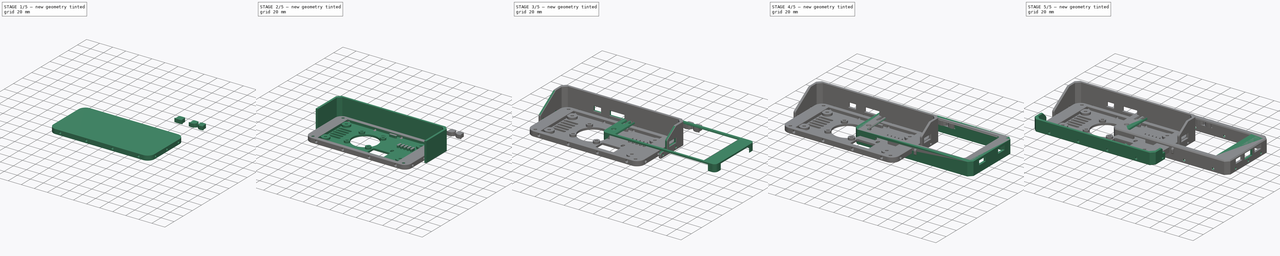
[diagram: build sequence overview — one tinted view per stage of 5, left to right]
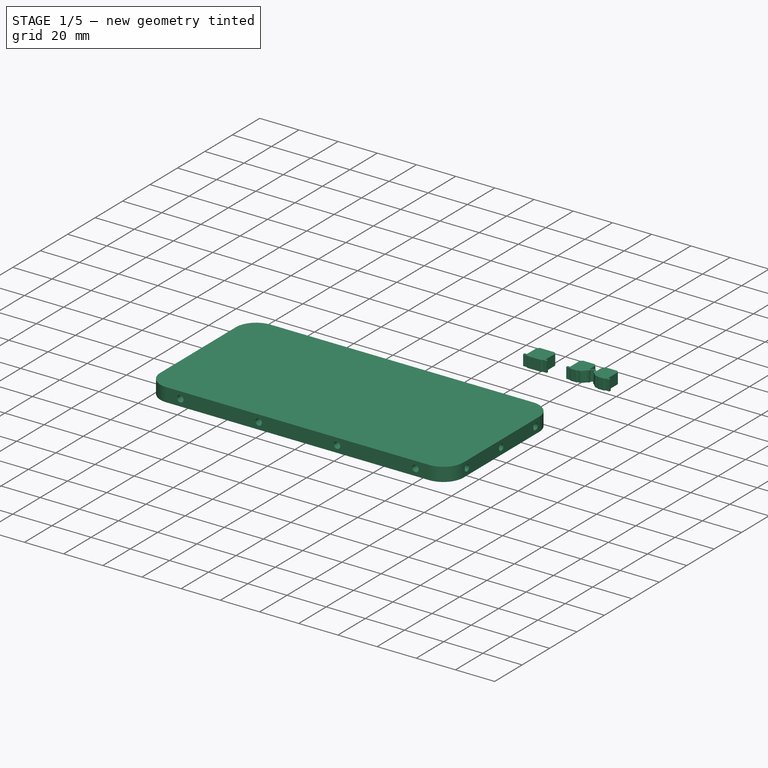
[diagram: stage 1 of 5 — iso view after this stage's code; geometry added in this stage tinted green]
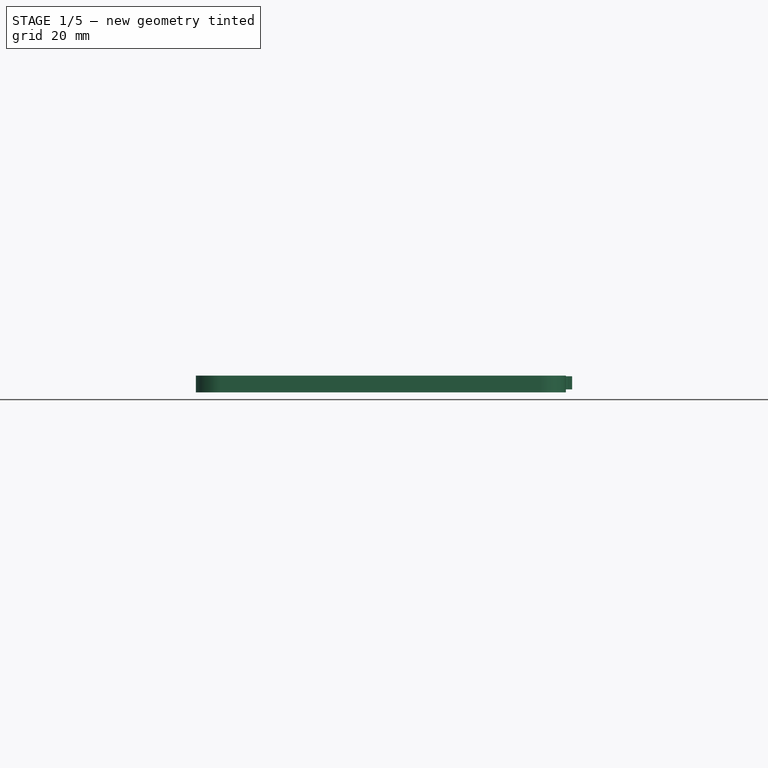
[diagram: stage 1 of 5 — front view after this stage's code; geometry added in this stage tinted green]
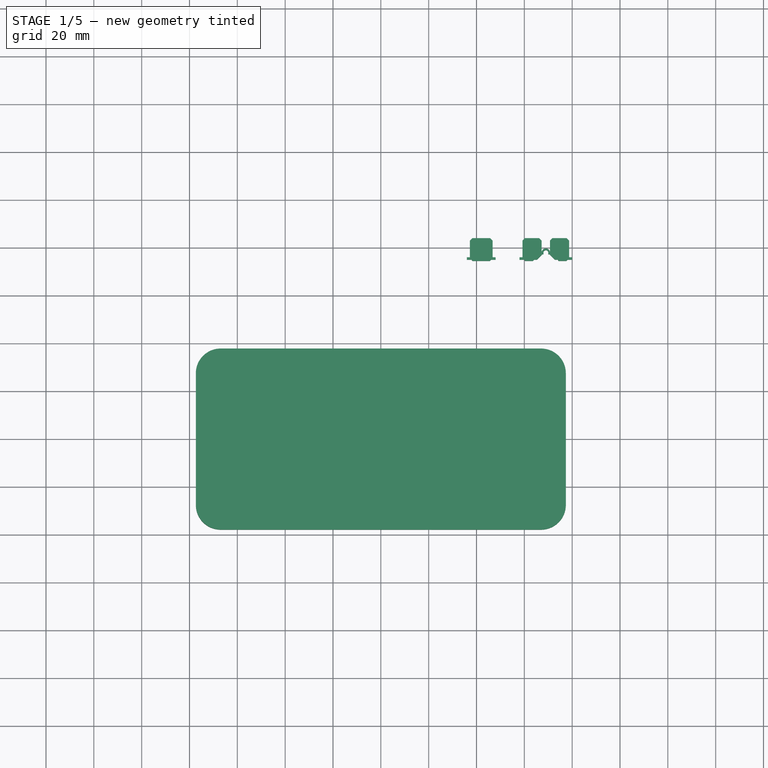
[diagram: stage 1 of 5 — top view after this stage's code; geometry added in this stage tinted green]
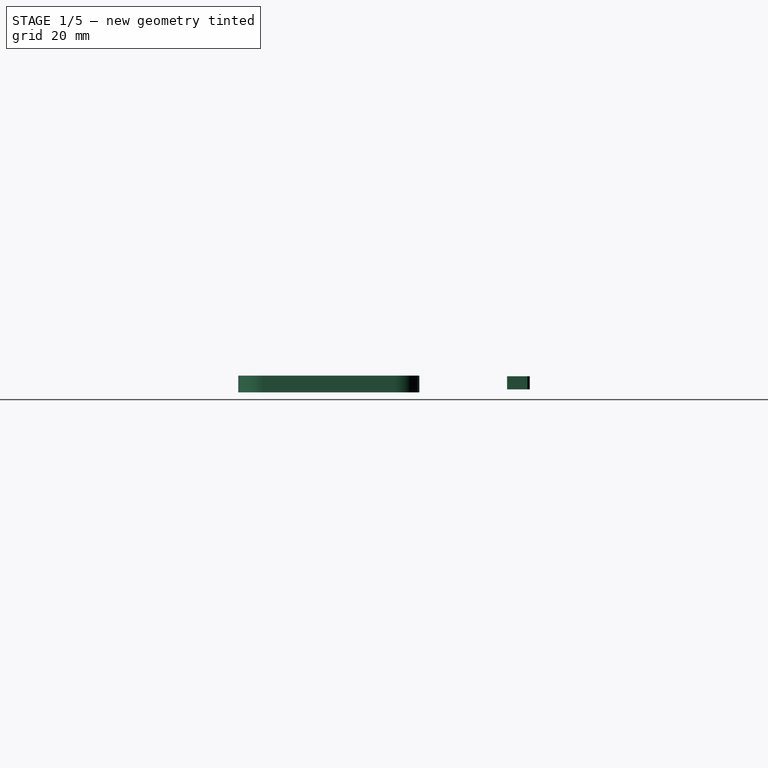
[diagram: stage 1 of 5 — right view after this stage's code; geometry added in this stage tinted green]
FCSTD DOCUMENT  (FreeCAD 0.19R24291 (Git))
Label: pixel-xl-navi-case-slim
License: All rights reserved
LicenseURL: http://en.wikipedia.org/wiki/All_rights_reserved
objects: Sketcher::SketchObject×46, PartDesign::Pocket×31, PartDesign::Pad×19, PartDesign::Chamfer×17, PartDesign::Fillet×10, Part::Feature×9, PartDesign::Body×8, PartDesign::FeatureBase×5, PartDesign::Plane×1
note: 223 computed .brp shape members not serialized (recipe doc carries the construction recipe); baked Part::Feature solids carry a one-line shape summary decoded from their .brp

FEATURE [Part::Feature] Chamfer024001
  Placement = pos=(-77.5,-41,-8) rot=(0,0,1;0rad)
  shape: bbox 165.3 x 59.15 x 33 mm, 141 faces (baked)
FEATURE [Part::Feature] Chamfer028001
  Placement = pos=(-77.5,-38,0) rot=(0,0,1;0rad)
  shape: bbox 159 x 90 x 10 mm, 119 faces (baked)
FEATURE [Part::Feature] Chamfer036003001
  Placement = pos=(0,0,-32.5) rot=(0,0,1;0rad)
  shape: bbox 159 x 90 x 9 mm, 273 faces (baked)
FEATURE [Part::Feature] Chamfer025001
  shape: bbox 165.3 x 22.15 x 16 mm, 102 faces (baked)
FEATURE [Sketcher::SketchObject] Sketch008
  FullyConstrained = true
  MapMode = 5
  Support = -> [XY_Plane001]
  sketch-geometry (4):
    g0: LineSegment StartX=-77.35 StartY=37.85 StartZ=0 EndX=77.35 EndY=37.85 EndZ=0
    g1: LineSegment StartX=77.35 StartY=37.85 StartZ=0 EndX=77.35 EndY=-37.85 EndZ=0
    g2: LineSegment StartX=77.35 StartY=-37.85 StartZ=0 EndX=-77.35 EndY=-37.85 EndZ=0
    g3: LineSegment StartX=-77.35 StartY=-37.85 StartZ=0 EndX=-77.35 EndY=37.85 EndZ=0
  constraints (12):
    c: Coincident(g0,g1)
    c: Coincident(g1,g2)
    c: Coincident(g2,g3)
    c: Coincident(g3,g0)
    c: Horizontal(g0)
    c: Horizontal(g2)
    c: Vertical(g1)
    c: Vertical(g3)
    c: DistanceX(g0,g0) = 154.7
    c: DistanceY(g3,g3) = 75.7
    c: DistanceY(g2,g-1) = 37.85
    c: DistanceX(g0,g-1) = 77.35
FEATURE [PartDesign::Pad] Pad006
  Direction = (1,1,1)
  Length = 7
  Length2 = 100
  Profile = -> Sketch008
  Type = 0
FEATURE [PartDesign::Fillet] Fillet001
  Base = -> Pad006 [Edge5,Edge8,Edge1,Edge2]
  BaseFeature = -> Pad006
  Radius = 10.35
  SupportTransform = false
FEATURE [Sketcher::SketchObject] Sketch009
  FullyConstrained = true
  MapMode = 5
  Placement = pos=(0,37.85,0) rot=(0,0.707107,0.707107;3.14159rad)
  Support = -> [Fillet001]
  sketch-geometry (4):
    g0: Circle CenterX=-60 CenterY=3.5 CenterZ=0 NormalX=0 NormalY=0 NormalZ=1 AngleXU=0 Radius=1.65
    g1: Circle CenterX=-20 CenterY=3.5 CenterZ=0 NormalX=0 NormalY=0 NormalZ=1 AngleXU=0 Radius=1.65
    g2: Circle CenterX=20 CenterY=3.5 CenterZ=0 NormalX=0 NormalY=0 NormalZ=1 AngleXU=0 Radius=1.65
    g3: Circle CenterX=60 CenterY=3.5 CenterZ=0 NormalX=0 NormalY=0 NormalZ=1 AngleXU=0 Radius=1.65
  constraints (12):
    c: Equal(g0,g1)
    c: Equal(g1,g2)
    c: Equal(g2,g3)
    c: Horizontal(g0,g1)
    c: Horizontal(g1,g2)
    c: Horizontal(g2,g3)
    c: DistanceY(g-1,g1) = 3.5
    c: DistanceX(g1,g-1) = 20
    c: DistanceX(g-1,g2) = 20
    c: DistanceX(g2,g3) = 40
    c: DistanceX(g0,g1) = 40
    c: Radius(g0) = 1.65
FEATURE [PartDesign::Pocket] Pocket008005
  BaseFeature = -> Fillet001
  Length = 8
  Length2 = 100
  Profile = -> Sketch009
  Type = 0
FEATURE [Sketcher::SketchObject] Sketch010
  ExternalGeometry = -> [Pocket008005]
  FullyConstrained = true
  MapMode = 5
  Placement = pos=(0,-37.85,0) rot=(1,0,0;1.5708rad)
  Support = -> [Pocket008005]
  sketch-geometry (4):
    g0: Circle CenterX=-60 CenterY=3.5 CenterZ=0 NormalX=0 NormalY=0 NormalZ=1 AngleXU=0 Radius=1.65
    g1: Circle CenterX=-20 CenterY=3.5 CenterZ=0 NormalX=0 NormalY=0 NormalZ=1 AngleXU=0 Radius=1.65
    g2: Circle CenterX=20 CenterY=3.5 CenterZ=0 NormalX=0 NormalY=0 NormalZ=1 AngleXU=0 Radius=1.65
    g3: Circle CenterX=60 CenterY=3.5 CenterZ=0 NormalX=0 NormalY=0 NormalZ=1 AngleXU=0 Radius=1.65
  constraints (8):
    c: Coincident(g0,g-6)
    c: Coincident(g1,g-5)
    c: Coincident(g2,g-4)
    c: Coincident(g3,g-3)
    c: Radius(g3) = 1.65
    c: Equal(g3,g2)
    c: Equal(g2,g1)
    c: Equal(g1,g0)
FEATURE [PartDesign::Pocket] Pocket008006
  BaseFeature = -> Pocket008005
  Length = 8
  Length2 = 100
  Profile = -> Sketch010
  Type = 0
FEATURE [Sketcher::SketchObject] Sketch011
  FullyConstrained = true
  MapMode = 5
  Placement = pos=(77.35,0,0) rot=(0.57735,0.57735,0.57735;2.0944rad)
  Support = -> [Pocket008006]
  sketch-geometry (3):
    g0: Circle CenterX=-25 CenterY=3.5 CenterZ=0 NormalX=0 NormalY=0 NormalZ=1 AngleXU=0 Radius=1.65
    g1: Circle CenterX=0 CenterY=3.5 CenterZ=0 NormalX=0 NormalY=0 NormalZ=1 AngleXU=0 Radius=1.65
    g2: Circle CenterX=25 CenterY=3.5 CenterZ=0 NormalX=0 NormalY=0 NormalZ=1 AngleXU=0 Radius=1.65
  constraints (9):
    c: PointOnObject(g1,g-2)
    c: DistanceY(g-1,g1) = 3.5
    c: Radius(g1) = 1.65
    c: Equal(g0,g1)
    c: Equal(g1,g2)
    c: Horizontal(g0,g1)
    c: Horizontal(g1,g2)
    c: DistanceX(g0,g-1) = 25
    c: DistanceX(g-1,g2) = 25
FEATURE [PartDesign::Pocket] Pocket008007
  BaseFeature = -> Pocket008006
  Length = 8
  Length2 = 100
  Profile = -> Sketch011
  Type = 0
FEATURE [Sketcher::SketchObject] Sketch012
  FullyConstrained = true
  MapMode = 5
  Placement = pos=(-77.35,0,0) rot=(0.57735,-0.57735,-0.57735;2.0944rad)
  Support = -> [Pocket008007]
  sketch-geometry (3):
    g0: Circle CenterX=-25 CenterY=3.5 CenterZ=0 NormalX=0 NormalY=0 NormalZ=1 AngleXU=0 Radius=1.65
    g1: Circle CenterX=0 CenterY=3.5 CenterZ=0 NormalX=0 NormalY=0 NormalZ=1 AngleXU=0 Radius=1.65
    g2: Circle CenterX=25 CenterY=3.5 CenterZ=0 NormalX=0 NormalY=0 NormalZ=1 AngleXU=0 Radius=1.65
  constraints (9):
    c: PointOnObject(g1,g-2)
    c: Horizontal(g2,g1)
    c: Horizontal(g1,g0)
    c: DistanceY(g-1,g1) = 3.5
    c: DistanceX(g0,g1) = 25
    c: DistanceX(g1,g2) = 25
    c: Equal(g0,g1)
    c: Equal(g1,g2)
    c: Radius(g2) = 1.65
FEATURE [PartDesign::Pocket] Pocket008008
  BaseFeature = -> Pocket008007
  Length = 7
  Length2 = 100
  Profile = -> Sketch012
  Type = 0
FEATURE [PartDesign::Body] Body001  label="back"
  Group = -> [Sketch008,Pad006,Fillet001,Sketch009,Pocket008005,Sketch010,Pocket008006,Sketch011,Pocket008007,Sketch012,Pocket008008,Sketch013,Pocket008009,Sketch014,Pocket008010,Sketch015,Pocket008011,Sketch016,Pad007,Sketch017,Pad008,Sketch018,Pocket008012,Sketch019,Pad009,Chamfer036003002,DatumPlane,Sketch030,Pocket008022,Sketch038,Pocket008027,Fillet008,Chamfer036003011,Sketch039,Pad016,Sketch040,+2 more]
  Origin = -> Origin001
  Placement = pos=(0,0,-8) rot=(0,0,1;0rad)
  Tip = -> Chamfer036003012
FEATURE [Part::Feature] Chamfer015001  label="volume-btn001"
  Placement = pos=(0,2,0) rot=(0,0,1;0rad)
  shape: bbox 22 x 12.5 x 5.5 mm, 42 faces (baked)
FEATURE [Part::Feature] Chamfer014001  label="power-btn001"
  Placement = pos=(-78,-36,0) rot=(0,0,1;0rad)
  shape: bbox 12 x 12.5 x 5.5 mm, 18 faces (baked)
FEATURE [PartDesign::FeatureBase] BaseFeature002
  BaseFeature = -> Chamfer014001
FEATURE [Sketcher::SketchObject] Sketch041
  ExternalGeometry = -> [BaseFeature002]
  FullyConstrained = true
  MapMode = 5
  Placement = pos=(0,0,1.25) rot=(1,0,0;3.14159rad)
  Support = -> [BaseFeature002]
  sketch-geometry (4):
    g0: LineSegment StartX=37.25 StartY=-84 StartZ=0 EndX=46.75 EndY=-84 EndZ=0
    g1: LineSegment StartX=46.75 StartY=-84 StartZ=0 EndX=46.75 EndY=-87 EndZ=0
    g2: LineSegment StartX=46.75 StartY=-87 StartZ=0 EndX=37.25 EndY=-87 EndZ=0
    g3: LineSegment StartX=37.25 StartY=-87 StartZ=0 EndX=37.25 EndY=-84 EndZ=0
  constraints (12):
    c: Coincident(g0,g1)
    c: Coincident(g1,g2)
    c: Coincident(g2,g3)
    c: Coincident(g3,g0)
    c: Horizontal(g0)
    c: Horizontal(g2)
    c: Vertical(g1)
    c: Vertical(g3)
    c: PointOnObject(g0,g-3)
    c: Horizontal(g-5,g1)
    c: Vertical(g1,g-4)
    c: DistanceY(g3,g3) = 3
FEATURE [PartDesign::Pocket] Pocket008029
  BaseFeature = -> BaseFeature002
  Length = 5
  Length2 = 100
  Profile = -> Sketch041
  Type = 1
FEATURE [PartDesign::Chamfer] Chamfer036003013
  Angle = 45
  Base = -> Pocket008029 [Edge38,Edge41]
  BaseFeature = -> Pocket008029
  ChamferType = 0
  FlipDirection = false
  Size = 1
  Size2 = 1
  SupportTransform = false
FEATURE [PartDesign::Body] Body006
  BaseFeature = -> Chamfer014001
  Group = -> [BaseFeature002,Sketch041,Pocket008029,Chamfer036003013]
  Origin = -> Origin006
  Tip = -> Chamfer036003013
FEATURE [PartDesign::FeatureBase] BaseFeature003
  BaseFeature = -> Chamfer015001
FEATURE [Sketcher::SketchObject] Sketch042
  ExternalGeometry = -> [BaseFeature003]
  FullyConstrained = true
  MapMode = 5
  Placement = pos=(0,0,1.25) rot=(1,0,0;3.14159rad)
  Support = -> [BaseFeature003]
  sketch-geometry (4):
    g0: LineSegment StartX=59.25 StartY=-84 StartZ=0 EndX=78.75 EndY=-84 EndZ=0
    g1: LineSegment StartX=78.75 StartY=-84 StartZ=0 EndX=78.75 EndY=-87 EndZ=0
    g2: LineSegment StartX=78.75 StartY=-87 StartZ=0 EndX=59.25 EndY=-87 EndZ=0
    g3: LineSegment StartX=59.25 StartY=-87 StartZ=0 EndX=59.25 EndY=-84 EndZ=0
  constraints (12):
    c: Coincident(g0,g1)
    c: Coincident(g1,g2)
    c: Coincident(g2,g3)
    c: Coincident(g3,g0)
    c: Horizontal(g0)
    c: Horizontal(g2)
    c: Vertical(g1)
    c: Vertical(g3)
    c: PointOnObject(g0,g-3)
    c: Horizontal(g-5,g1)
    c: Vertical(g1,g-4)
    c: DistanceY(g1,g1) = 3
FEATURE [PartDesign::Pocket] Pocket008030
  BaseFeature = -> BaseFeature003
  Length = 5
  Length2 = 100
  Profile = -> Sketch042
  Type = 1
FEATURE [PartDesign::Chamfer] Chamfer036003014
  Angle = 45
  Base = -> Pocket008030 [Edge96,Edge99,Edge104,Edge107]
  BaseFeature = -> Pocket008030
  ChamferType = 0
  FlipDirection = false
  Size = 1
  Size2 = 1
  SupportTransform = false
FEATURE [Sketcher::SketchObject] Sketch043
  ExternalGeometry = -> [Chamfer036003014]
  FullyConstrained = true
  MapMode = 5
  Placement = pos=(0,0,1.25) rot=(1,0,0;3.14159rad)
  Support = -> [Chamfer036003014]
  sketch-geometry (8):
    g0: ArcOfCircle CenterX=69 CenterY=-78 CenterZ=0 NormalX=0 NormalY=0 NormalZ=1 AngleXU=0 Radius=1.75 StartAngle=3.14159 EndAngle=6.28319
    g1: ArcOfCircle CenterX=69 CenterY=-78 CenterZ=0 NormalX=0 NormalY=0 NormalZ=1 AngleXU=0 Radius=1 StartAngle=3.14159 EndAngle=6.28319
    g2: LineSegment StartX=68 StartY=-78 StartZ=0 EndX=68 EndY=-77.25 EndZ=0
    g3: LineSegment StartX=68 StartY=-77.25 StartZ=0 EndX=67.25 EndY=-77.25 EndZ=0
    g4: LineSegment StartX=67.25 StartY=-77.25 StartZ=0 EndX=67.25 EndY=-78 EndZ=0
    g5: LineSegment StartX=70 StartY=-78 StartZ=0 EndX=70 EndY=-77.25 EndZ=0
    g6: LineSegment StartX=70 StartY=-77.25 StartZ=0 EndX=70.75 EndY=-77.25 EndZ=0
    g7: LineSegment StartX=70.75 StartY=-77.25 StartZ=0 EndX=70.75 EndY=-78 EndZ=0
  constraints (24):
    c: DistanceX(g-3,g-4) = 3.5
    c: PointOnObject(g0,g-3)
    c: PointOnObject(g0,g-4)
    c: Horizontal(g0,g0)
    c: Horizontal(g0,g0)
    c: DistanceY(g0,g-3) = 1
    c: Horizontal(g1,g1)
    c: Horizontal(g1,g1)
    c: Coincident(g1,g0)
    c: DistanceX(g0,g1) = 0.75
    c: Tangent(g1,g2) = 1.5708
    c: Coincident(g2,g3)
    c: PointOnObject(g3,g-3)
    c: Horizontal(g3)
    c: Coincident(g3,g4)
    c: Coincident(g4,g0)
    c: Tangent(g1,g5) = -1.5708
    c: Coincident(g5,g6)
    c: PointOnObject(g6,g-4)
    c: Horizontal(g6)
    c: Coincident(g6,g7)
    c: Coincident(g7,g0)
    c: Horizontal(g2,g5)
    c: DistanceY(g2,g2) = 0.75
FEATURE [PartDesign::Pad] Pad017
  BaseFeature = -> Chamfer036003014
  Direction = (1,1,1)
  Length = 10
  Length2 = 100
  Profile = -> Sketch043
  Reversed = true
  Type = 3
  UpToFace = -> Chamfer036003014 [Face1]
FEATURE [Sketcher::SketchObject] Sketch044
  ExternalGeometry = -> [Pad017]
  FullyConstrained = true
  MapMode = 5
  Placement = pos=(0,0,1.25) rot=(1,0,0;3.14159rad)
  Support = -> [Pad017]
  sketch-geometry (4):
    g0: LineSegment StartX=67.25 StartY=-80 StartZ=0 EndX=70.75 EndY=-80 EndZ=0
    g1: LineSegment StartX=70.75 StartY=-80 StartZ=0 EndX=70.75 EndY=-83 EndZ=0
    g2: LineSegment StartX=70.75 StartY=-83 StartZ=0 EndX=67.25 EndY=-83 EndZ=0
    g3: LineSegment StartX=67.25 StartY=-83 StartZ=0 EndX=67.25 EndY=-80 EndZ=0
  constraints (10):
    c: Coincident(g0,g1)
    c: Coincident(g1,g2)
    c: Coincident(g2,g3)
    c: Coincident(g3,g0)
    c: Horizontal(g0)
    c: Horizontal(g2)
    c: Vertical(g1)
    c: Vertical(g3)
    c: Coincident(g0,g-3)
    c: Coincident(g1,g-4)
FEATURE [PartDesign::Pocket] Pocket008031
  BaseFeature = -> Pad017
  Length = 5
  Length2 = 100
  Profile = -> Sketch044
  Refine = true
  Type = 1
FEATURE [PartDesign::Fillet] Fillet009
  Base = -> Pocket008031 [Edge70,Edge104,Edge49,Edge45]
  BaseFeature = -> Pocket008031
  Radius = 0.24
  SupportTransform = false
FEATURE [Sketcher::SketchObject] Sketch045
  ExternalGeometry = -> [Fillet009]
  FullyConstrained = true
  MapMode = 5
  Placement = pos=(0,0,1.25) rot=(1,0,0;3.14159rad)
  Support = -> [Fillet009]
  sketch-geometry (8):
    g0: LineSegment StartX=67.25 StartY=-78 StartZ=0 EndX=67.75 EndY=-78 EndZ=0
    g1: LineSegment StartX=67.75 StartY=-78 StartZ=0 EndX=67.75 EndY=-78.5 EndZ=0
    g2: LineSegment StartX=67.75 StartY=-78.5 StartZ=0 EndX=67.25 EndY=-78.5 EndZ=0
    g3: LineSegment StartX=67.25 StartY=-78.5 StartZ=0 EndX=67.25 EndY=-78 EndZ=0
    g4: LineSegment StartX=70.75 StartY=-78 StartZ=0 EndX=70.25 EndY=-78 EndZ=0
    g5: LineSegment StartX=70.25 StartY=-78 StartZ=0 EndX=70.25 EndY=-78.5 EndZ=0
    g6: LineSegment StartX=70.25 StartY=-78.5 StartZ=0 EndX=70.75 EndY=-78.5 EndZ=0
    g7: LineSegment StartX=70.75 StartY=-78.5 StartZ=0 EndX=70.75 EndY=-78 EndZ=0
  constraints (22):
    c: Coincident(g0,g1)
    c: Coincident(g1,g2)
    c: Coincident(g2,g3)
    c: Coincident(g3,g0)
    c: Horizontal(g0)
    c: Horizontal(g2)
    c: Vertical(g1)
    c: Vertical(g3)
    c: Coincident(g0,g-3)
    c: Coincident(g4,g5)
    c: Coincident(g5,g6)
    c: Coincident(g6,g7)
    c: Coincident(g7,g4)
    c: Horizontal(g4)
    c: Horizontal(g6)
    c: Vertical(g5)
    c: Vertical(g7)
    c: Coincident(g4,g-4)
    c: Horizontal(g5,g1)
    c: DistanceY(g3,g3) = 0.5
    c: DistanceX(g0,g0) = 0.5
    c: DistanceX(g4,g4) = 0.5
FEATURE [PartDesign::Pad] Pad018
  BaseFeature = -> Fillet009
  Direction = (1,1,1)
  Length = 10
  Length2 = 100
  Profile = -> Sketch045
  Refine = true
  Type = 3
  UpToFace = -> Fillet009 [Face5]
FEATURE [PartDesign::Body] Body007
  BaseFeature = -> Chamfer015001
  Group = -> [BaseFeature003,Sketch042,Pocket008030,Chamfer036003014,Sketch043,Pad017,Sketch044,Pocket008031,Fillet009,Sketch045,Pad018]
  Origin = -> Origin007
  Tip = -> Pad018
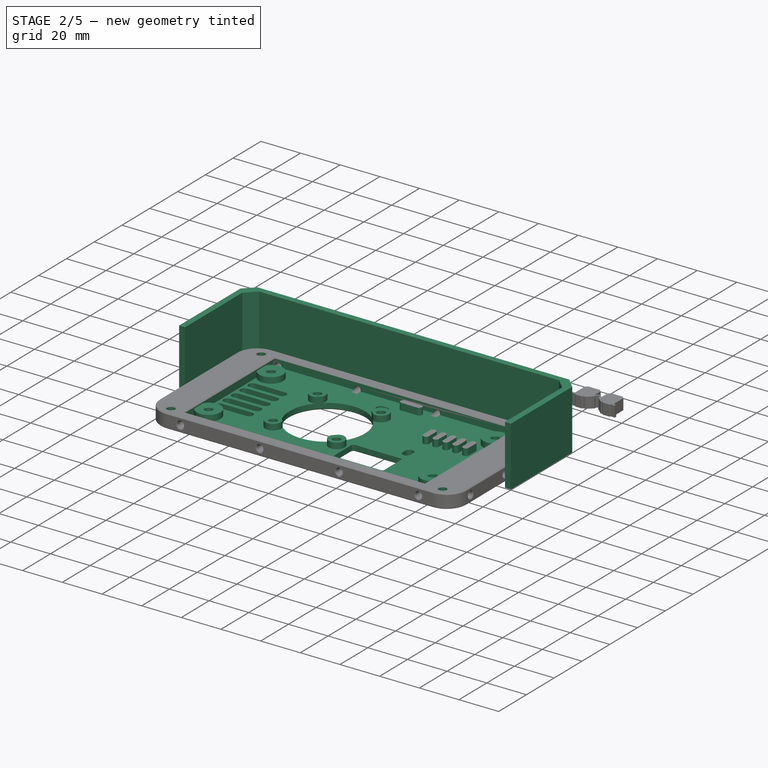
[diagram: stage 2 of 5 — iso view after this stage's code; geometry added in this stage tinted green]
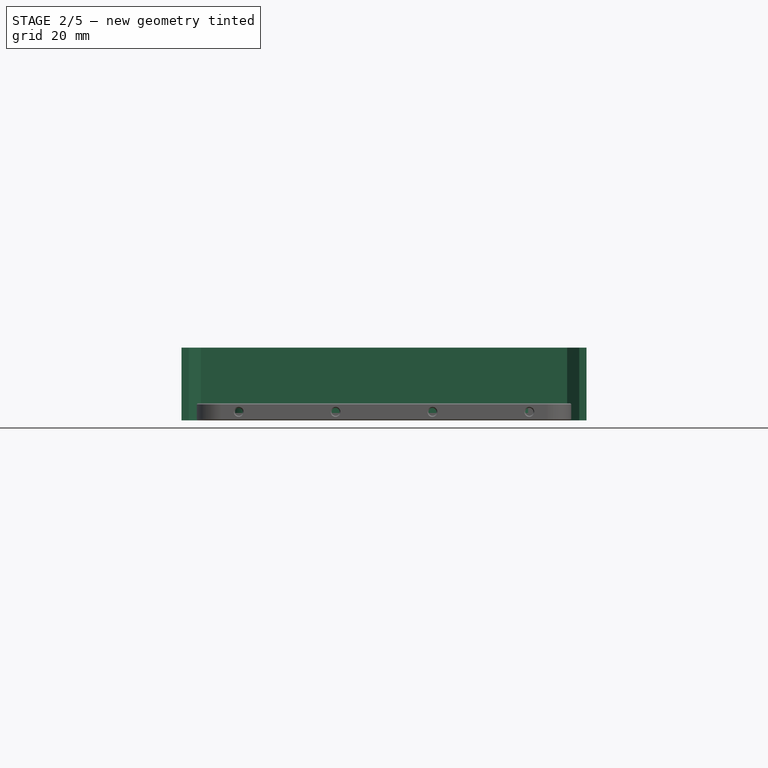
[diagram: stage 2 of 5 — front view after this stage's code; geometry added in this stage tinted green]
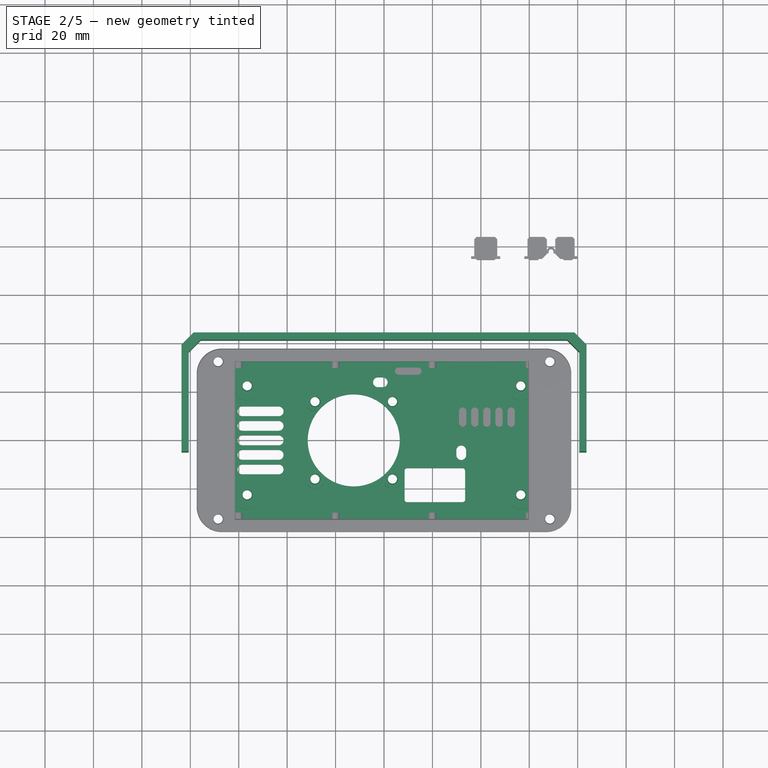
[diagram: stage 2 of 5 — top view after this stage's code; geometry added in this stage tinted green]
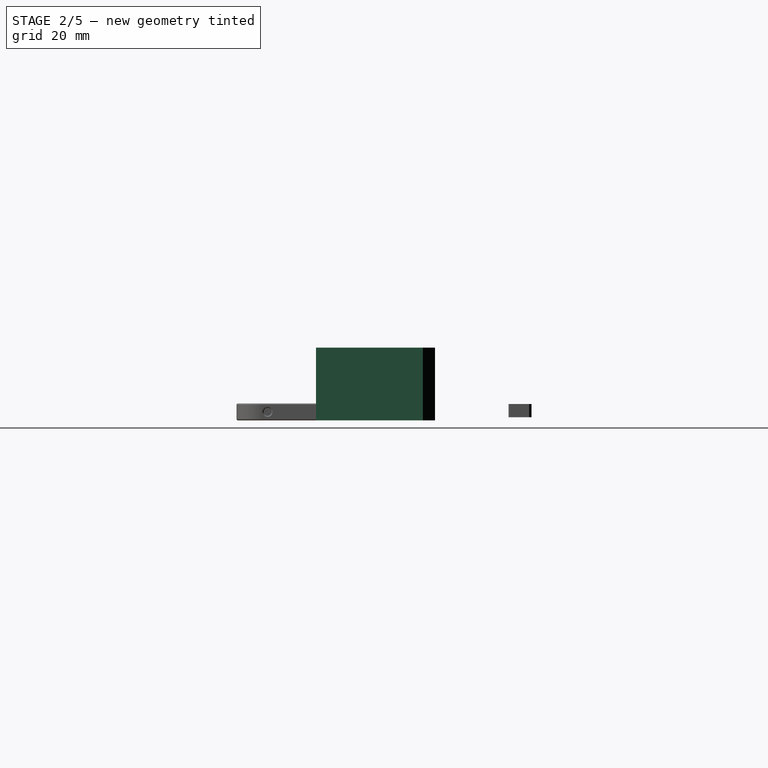
[diagram: stage 2 of 5 — right view after this stage's code; geometry added in this stage tinted green]
FEATURE [Sketcher::SketchObject] Sketch013
  FullyConstrained = true
  MapMode = 5
  Placement = pos=(0,0,7) rot=(0,0,1;0rad)
  Support = -> [Pocket008008]
  sketch-geometry (4):
    g0: LineSegment StartX=-61.5 StartY=32.5 StartZ=0 EndX=59.5 EndY=32.5 EndZ=0
    g1: LineSegment StartX=59.5 StartY=32.5 StartZ=0 EndX=59.5 EndY=-32.5 EndZ=0
    g2: LineSegment StartX=59.5 StartY=-32.5 StartZ=0 EndX=-61.5 EndY=-32.5 EndZ=0
    g3: LineSegment StartX=-61.5 StartY=-32.5 StartZ=0 EndX=-61.5 EndY=32.5 EndZ=0
  constraints (12):
    c: Coincident(g0,g1)
    c: Coincident(g1,g2)
    c: Coincident(g2,g3)
    c: Coincident(g3,g0)
    c: Horizontal(g0)
    c: Horizontal(g2)
    c: Vertical(g1)
    c: Vertical(g3)
    c: DistanceX(g0,g-1) = 61.5
    c: DistanceX(g-1,g0) = 59.5
    c: DistanceY(g-1,g0) = 32.5
    c: DistanceY(g2,g-1) = 32.5
FEATURE [PartDesign::Pocket] Pocket008009
  BaseFeature = -> Pocket008008
  Length = 4
  Length2 = 100
  Profile = -> Sketch013
  Type = 0
FEATURE [Sketcher::SketchObject] Sketch014
  FullyConstrained = true
  MapMode = 5
  Placement = pos=(0,0,0) rot=(1,0,0;3.14159rad)
  Support = -> [Pocket008009]
  sketch-geometry (8):
    g0: Circle CenterX=-68.5 CenterY=32.5 CenterZ=0 NormalX=0 NormalY=0 NormalZ=1 AngleXU=0 Radius=1.9
    g1: Circle CenterX=-56.5 CenterY=22.5 CenterZ=0 NormalX=0 NormalY=0 NormalZ=1 AngleXU=0 Radius=1.9
    g2: Circle CenterX=-68.5 CenterY=-32.5 CenterZ=0 NormalX=0 NormalY=0 NormalZ=1 AngleXU=0 Radius=1.9
    g3: Circle CenterX=-56.5 CenterY=-22.5 CenterZ=0 NormalX=0 NormalY=0 NormalZ=1 AngleXU=0 Radius=1.9
    g4: Circle CenterX=56.5 CenterY=22.5 CenterZ=0 NormalX=0 NormalY=0 NormalZ=1 AngleXU=0 Radius=1.9
    g5: Circle CenterX=68.5 CenterY=32.5 CenterZ=0 NormalX=0 NormalY=0 NormalZ=1 AngleXU=0 Radius=1.9
    g6: Circle CenterX=56.5 CenterY=-22.5 CenterZ=0 NormalX=0 NormalY=0 NormalZ=1 AngleXU=0 Radius=1.9
    g7: Circle CenterX=68.5 CenterY=-32.5 CenterZ=0 NormalX=0 NormalY=0 NormalZ=1 AngleXU=0 Radius=1.9
  constraints (24):
    c: Vertical(g0,g2)
    c: Vertical(g3,g1)
    c: Vertical(g4,g6)
    c: Vertical(g7,g5)
    c: Horizontal(g5,g0)
    c: Horizontal(g1,g4)
    c: Horizontal(g3,g6)
    c: Horizontal(g7,g2)
    c: DistanceX(g1,g-1) = 56.5
    c: DistanceX(g-1,g4) = 56.5
    c: DistanceX(g-1,g5) = 68.5
    c: DistanceX(g0,g-1) = 68.5
    c: DistanceY(g-1,g0) = 32.5
    c: DistanceY(g2,g-1) = 32.5
    c: DistanceY(g-1,g4) = 22.5
    c: DistanceY(g6,g-1) = 22.5
    c: Equal(g0,g1)
    c: Equal(g1,g3)
    c: Equal(g3,g2)
    c: Equal(g2,g6)
    c: Equal(g6,g7)
    c: Equal(g7,g4)
    c: Equal(g4,g5)
    c: Radius(g5) = 1.9
FEATURE [PartDesign::Pocket] Pocket008010
  BaseFeature = -> Pocket008009
  Length = 5
  Length2 = 100
  Profile = -> Sketch014
  Type = 1
FEATURE [Sketcher::SketchObject] Sketch015
  FullyConstrained = true
  MapMode = 5
  Placement = pos=(0,0,0) rot=(1,0,0;3.14159rad)
  Support = -> [Pocket008010]
  sketch-geometry (20):
    g0: ArcOfCircle CenterX=-58.5 CenterY=0 CenterZ=0 NormalX=0 NormalY=0 NormalZ=1 AngleXU=0 Radius=2 StartAngle=1.5708 EndAngle=4.71239
    g1: ArcOfCircle CenterX=-43.5 CenterY=-4.34e-14 CenterZ=0 NormalX=0 NormalY=0 NormalZ=1 AngleXU=0 Radius=2 StartAngle=4.71239 EndAngle=7.85398
    g2: LineSegment StartX=-58.5 StartY=-2 StartZ=0 EndX=-43.5 EndY=-2 EndZ=0
    g3: LineSegment StartX=-58.5 StartY=2 StartZ=0 EndX=-43.5 EndY=2 EndZ=0
    g4: ArcOfCircle CenterX=-58.5 CenterY=6 CenterZ=0 NormalX=0 NormalY=0 NormalZ=1 AngleXU=0 Radius=2 StartAngle=1.5708 EndAngle=4.71239
    g5: ArcOfCircle CenterX=-43.5 CenterY=6 CenterZ=0 NormalX=0 NormalY=0 NormalZ=1 AngleXU=0 Radius=2 StartAngle=4.71239 EndAngle=7.85398
    g6: LineSegment StartX=-58.5 StartY=4 StartZ=0 EndX=-43.5 EndY=4 EndZ=0
    g7: LineSegment StartX=-58.5 StartY=8 StartZ=0 EndX=-43.5 EndY=8 EndZ=0
    g8: ArcOfCircle CenterX=-58.5 CenterY=12 CenterZ=0 NormalX=0 NormalY=0 NormalZ=1 AngleXU=0 Radius=2 StartAngle=1.5708 EndAngle=4.71239
    g9: ArcOfCircle CenterX=-43.5 CenterY=12 CenterZ=0 NormalX=0 NormalY=0 NormalZ=1 AngleXU=0 Radius=2 StartAngle=4.71239 EndAngle=7.85398
    g10: LineSegment StartX=-58.5 StartY=10 StartZ=0 EndX=-43.5 EndY=10 EndZ=0
    g11: LineSegment StartX=-58.5 StartY=14 StartZ=0 EndX=-43.5 EndY=14 EndZ=0
    g12: ArcOfCircle CenterX=-58.5 CenterY=-6 CenterZ=0 NormalX=0 NormalY=0 NormalZ=1 AngleXU=0 Radius=2 StartAngle=1.5708 EndAngle=4.71239
    g13: ArcOfCircle CenterX=-43.5 CenterY=-6 CenterZ=0 NormalX=0 NormalY=0 NormalZ=1 AngleXU=0 Radius=2 StartAngle=4.71239 EndAngle=7.85398
    g14: LineSegment StartX=-58.5 StartY=-8 StartZ=0 EndX=-43.5 EndY=-8 EndZ=0
    g15: LineSegment StartX=-58.5 StartY=-4 StartZ=0 EndX=-43.5 EndY=-4 EndZ=0
    g16: ArcOfCircle CenterX=-58.5 CenterY=-12 CenterZ=0 NormalX=0 NormalY=0 NormalZ=1 AngleXU=0 Radius=2 StartAngle=1.5708 EndAngle=4.71239
    g17: ArcOfCircle CenterX=-43.5 CenterY=-12 CenterZ=0 NormalX=0 NormalY=0 NormalZ=1 AngleXU=0 Radius=2 StartAngle=4.71239 EndAngle=7.85398
    g18: LineSegment StartX=-58.5 StartY=-14 StartZ=0 EndX=-43.5 EndY=-14 EndZ=0
    g19: LineSegment StartX=-58.5 StartY=-10 StartZ=0 EndX=-43.5 EndY=-10 EndZ=0
  constraints (50):
    c: Tangent(g0,g3) = 1.5708
    c: Tangent(g0,g2) = -1.5708
    c: Tangent(g2,g1) = -1.5708
    c: Tangent(g3,g1) = 1.5708
    c: Horizontal(g2)
    c: Equal(g0,g1)
    c: PointOnObject(g0,g-1)
    c: Radius(g0) = 2
    c: DistanceX(g1,g-1) = 43.5
    c: DistanceX(g0,g1) = 15
    c: Tangent(g4,g7) = 1.5708
    c: Tangent(g4,g6) = -1.5708
    c: Tangent(g6,g5) = -1.5708
    c: Tangent(g7,g5) = 1.5708
    c: Horizontal(g6)
    c: Equal(g4,g5)
    c: Tangent(g8,g11) = 1.5708
    c: Tangent(g8,g10) = -1.5708
    c: Tangent(g10,g9) = -1.5708
    c: Tangent(g11,g9) = 1.5708
    c: Horizontal(g10)
    c: Equal(g8,g9)
    c: Tangent(g12,g15) = 1.5708
    c: Tangent(g12,g14) = -1.5708
    c: Tangent(g14,g13) = -1.5708
    c: Tangent(g15,g13) = 1.5708
    c: Horizontal(g14)
    c: Equal(g12,g13)
    c: Tangent(g16,g19) = 1.5708
    c: Tangent(g16,g18) = -1.5708
    c: Tangent(g18,g17) = -1.5708
    c: Tangent(g19,g17) = 1.5708
    c: Horizontal(g18)
    c: Equal(g16,g17)
    c: Equal(g16,g12)
    c: Equal(g12,g0)
    c: Equal(g0,g4)
    c: Equal(g4,g8)
    c: Vertical(g16,g12)
    c: Vertical(g12,g0)
    c: Vertical(g0,g4)
    c: Vertical(g4,g8)
    c: Vertical(g9,g5)
    c: Vertical(g5,g1)
    c: Vertical(g1,g13)
    c: Vertical(g13,g17)
    c: DistanceY(g0,g4) = 6
    c: DistanceY(g4,g8) = 6
    c: DistanceY(g12,g0) = 6
    c: DistanceY(g16,g12) = 6
FEATURE [PartDesign::Pocket] Pocket008011
  BaseFeature = -> Pocket008010
  Length = 5
  Length2 = 100
  Profile = -> Sketch015
  Type = 1
FEATURE [Sketcher::SketchObject] Sketch016
  ExternalGeometry = -> [Pocket008011]
  FullyConstrained = true
  MapMode = 5
  Placement = pos=(0,0,3) rot=(0,0,1;0rad)
  Support = -> [Pocket008011]
  sketch-geometry (8):
    g0: Circle CenterX=-56.5 CenterY=22.5 CenterZ=0 NormalX=0 NormalY=0 NormalZ=1 AngleXU=0 Radius=6
    g1: Circle CenterX=-56.5 CenterY=-22.5 CenterZ=0 NormalX=0 NormalY=0 NormalZ=1 AngleXU=0 Radius=6
    g2: Circle CenterX=56.5 CenterY=22.5 CenterZ=0 NormalX=0 NormalY=0 NormalZ=1 AngleXU=0 Radius=6
    g3: Circle CenterX=56.5 CenterY=-22.5 CenterZ=0 NormalX=0 NormalY=0 NormalZ=1 AngleXU=0 Radius=6
    g4: Circle CenterX=-56.5 CenterY=22.5 CenterZ=0 NormalX=0 NormalY=0 NormalZ=1 AngleXU=0 Radius=1.9
    g5: Circle CenterX=-56.5 CenterY=-22.5 CenterZ=0 NormalX=0 NormalY=0 NormalZ=1 AngleXU=0 Radius=1.9
    g6: Circle CenterX=56.5 CenterY=-22.5 CenterZ=0 NormalX=0 NormalY=0 NormalZ=1 AngleXU=0 Radius=1.9
    g7: Circle CenterX=56.5 CenterY=22.5 CenterZ=0 NormalX=0 NormalY=0 NormalZ=1 AngleXU=0 Radius=1.9
  constraints (16):
    c: Coincident(g0,g-3)
    c: Coincident(g1,g-4)
    c: Coincident(g2,g-6)
    c: Coincident(g3,g-5)
    c: Coincident(g4,g0)
    c: Coincident(g5,g1)
    c: Coincident(g6,g3)
    c: Coincident(g7,g2)
    c: Equal(g6,g5)
    c: Equal(g5,g4)
    c: Equal(g4,g7)
    c: Equal(g7,g-6)
    c: Equal(g0,g1)
    c: Equal(g1,g3)
    c: Equal(g3,g2)
    c: Radius(g2) = 6
FEATURE [PartDesign::Pad] Pad007
  BaseFeature = -> Pocket008011
  Direction = (1,1,1)
  Length = 3
  Length2 = 100
  Profile = -> Sketch016
  Type = 0
FEATURE [Sketcher::SketchObject] Sketch017
  FullyConstrained = true
  MapMode = 5
  Placement = pos=(0,0,3) rot=(0,0,1;0rad)
  Support = -> [Pad007]
  sketch-geometry (5):
    g0: Circle CenterX=-12.5 CenterY=0 CenterZ=0 NormalX=0 NormalY=0 NormalZ=1 AngleXU=0 Radius=19
    g1: Circle CenterX=-28.5 CenterY=16 CenterZ=0 NormalX=0 NormalY=0 NormalZ=1 AngleXU=0 Radius=4
    g2: Circle CenterX=3.5 CenterY=16 CenterZ=0 NormalX=0 NormalY=0 NormalZ=1 AngleXU=0 Radius=4
    g3: Circle CenterX=-28.5 CenterY=-16 CenterZ=0 NormalX=0 NormalY=0 NormalZ=1 AngleXU=0 Radius=4
    g4: Circle CenterX=3.5 CenterY=-16 CenterZ=0 NormalX=0 NormalY=0 NormalZ=1 AngleXU=0 Radius=4
  constraints (15):
    c: PointOnObject(g0,g-1)
    c: Radius(g0) = 19
    c: DistanceX(g0,g-1) = 12.5
    c: Horizontal(g4,g3)
    c: Vertical(g3,g1)
    c: Horizontal(g1,g2)
    c: Vertical(g2,g4)
    c: DistanceX(g1,g2) = 32
    c: DistanceX(g1,g0) = 16
    c: DistanceY(g3,g1) = 32
    c: DistanceY(g3,g-1) = 16
    c: Equal(g3,g4)
    c: Equal(g4,g2)
    c: Equal(g2,g1)
    c: Radius(g1) = 4
FEATURE [PartDesign::Pad] Pad008
  BaseFeature = -> Pad007
  Direction = (1,1,1)
  Length = 3
  Length2 = 100
  Profile = -> Sketch017
  Type = 0
FEATURE [Sketcher::SketchObject] Sketch018
  FullyConstrained = true
  MapMode = 5
  Placement = pos=(0,0,0) rot=(1,0,0;3.14159rad)
  Support = -> [Pad008]
  sketch-geometry (10):
    g0: Circle CenterX=-12.5 CenterY=0 CenterZ=0 NormalX=0 NormalY=0 NormalZ=1 AngleXU=0 Radius=19
    g1: Circle CenterX=-28.5 CenterY=16 CenterZ=0 NormalX=0 NormalY=0 NormalZ=1 AngleXU=0 Radius=1.9
    g2: Circle CenterX=3.5 CenterY=16 CenterZ=0 NormalX=0 NormalY=0 NormalZ=1 AngleXU=0 Radius=1.9
    g3: Circle CenterX=3.5 CenterY=-16 CenterZ=0 NormalX=0 NormalY=0 NormalZ=1 AngleXU=0 Radius=1.9
    g4: Circle CenterX=-28.5 CenterY=-16 CenterZ=0 NormalX=0 NormalY=0 NormalZ=1 AngleXU=0 Radius=1.9
    g5: Circle CenterX=22.5 CenterY=-22 CenterZ=0 NormalX=0 NormalY=0 NormalZ=1 AngleXU=0 Radius=4
    g6: ArcOfCircle CenterX=-2.5 CenterY=-24 CenterZ=0 NormalX=0 NormalY=0 NormalZ=1 AngleXU=0 Radius=2 StartAngle=1.5708 EndAngle=4.71239
    g7: ArcOfCircle CenterX=-0.5 CenterY=-24 CenterZ=0 NormalX=0 NormalY=0 NormalZ=1 AngleXU=0 Radius=2 StartAngle=4.71239 EndAngle=7.85398
    g8: LineSegment StartX=-2.5 StartY=-26 StartZ=0 EndX=-0.5 EndY=-26 EndZ=0
    g9: LineSegment StartX=-2.5 StartY=-22 StartZ=0 EndX=-0.5 EndY=-22 EndZ=0
  constraints (28):
    c: PointOnObject(g0,g-1)
    c: Radius(g0) = 19
    c: Radius(g2) = 1.9
    c: Equal(g1,g2)
    c: Equal(g2,g3)
    c: Equal(g3,g4)
    c: Vertical(g1,g4)
    c: Vertical(g3,g2)
    c: Horizontal(g2,g1)
    c: Horizontal(g4,g3)
    c: DistanceX(g0,g-1) = 12.5
    c: DistanceX(g1,g2) = 32
    c: DistanceX(g1,g0) = 16
    c: DistanceY(g4,g1) = 32
    c: DistanceY(g0,g1) = 16
    c: Radius(g5) = 4
    c: DistanceY(g5,g-1) = 22
    c: DistanceX(g-1,g5) = 22.5
    c: Tangent(g6,g9) = 1.5708
    c: Tangent(g6,g8) = -1.5708
    c: Tangent(g8,g7) = -1.5708
    c: Tangent(g9,g7) = 1.5708
    c: Horizontal(g8)
    c: Equal(g6,g7)
    c: DistanceX(g6,g7) = 2
    c: Radius(g6) = 2
    c: DistanceY(g7,g-1) = 24
    c: DistanceX(g7,g-1) = 0.5
FEATURE [PartDesign::Pocket] Pocket008012
  BaseFeature = -> Pad008
  Length = 5
  Length2 = 100
  Profile = -> Sketch018
  Type = 1
FEATURE [Sketcher::SketchObject] Sketch019
  FullyConstrained = true
  MapMode = 5
  Placement = pos=(0,0,3) rot=(0,0,1;0rad)
  Support = -> [Pocket008012]
  sketch-geometry (24):
    g0: ArcOfCircle CenterX=32.5 CenterY=12 CenterZ=0 NormalX=0 NormalY=0 NormalZ=1 AngleXU=0 Radius=1.5 StartAngle=1.805e-13 EndAngle=3.14159
    g1: ArcOfCircle CenterX=32.5 CenterY=7 CenterZ=0 NormalX=0 NormalY=0 NormalZ=1 AngleXU=0 Radius=1.5 StartAngle=3.14159 EndAngle=6.28319
    g2: LineSegment StartX=31 StartY=12 StartZ=0 EndX=31 EndY=7 EndZ=0
    g3: LineSegment StartX=34 StartY=12 StartZ=0 EndX=34 EndY=7 EndZ=0
    g4: ArcOfCircle CenterX=37.5 CenterY=12 CenterZ=0 NormalX=0 NormalY=0 NormalZ=1 AngleXU=0 Radius=1.5 StartAngle=1.806e-13 EndAngle=3.14159
    g5: ArcOfCircle CenterX=37.5 CenterY=7 CenterZ=0 NormalX=0 NormalY=0 NormalZ=1 AngleXU=0 Radius=1.5 StartAngle=3.14159 EndAngle=6.28319
    g6: LineSegment StartX=36 StartY=12 StartZ=0 EndX=36 EndY=7 EndZ=0
    g7: LineSegment StartX=39 StartY=12 StartZ=0 EndX=39 EndY=7 EndZ=0
    g8: ArcOfCircle CenterX=42.5 CenterY=12 CenterZ=0 NormalX=0 NormalY=0 NormalZ=1 AngleXU=0 Radius=1.5 StartAngle=1.811e-13 EndAngle=3.14159
    g9: ArcOfCircle CenterX=42.5 CenterY=7 CenterZ=0 NormalX=0 NormalY=0 NormalZ=1 AngleXU=0 Radius=1.5 StartAngle=3.14159 EndAngle=6.28319
    g10: LineSegment StartX=41 StartY=12 StartZ=0 EndX=41 EndY=7 EndZ=0
    g11: LineSegment StartX=44 StartY=12 StartZ=0 EndX=44 EndY=7 EndZ=0
    g12: ArcOfCircle CenterX=47.5 CenterY=12 CenterZ=0 NormalX=0 NormalY=0 NormalZ=1 AngleXU=0 Radius=1.5 StartAngle=1.81e-13 EndAngle=3.14159
    g13: ArcOfCircle CenterX=47.5 CenterY=7 CenterZ=0 NormalX=0 NormalY=0 NormalZ=1 AngleXU=0 Radius=1.5 StartAngle=3.14159 EndAngle=6.28319
    g14: LineSegment StartX=46 StartY=12 StartZ=0 EndX=46 EndY=7 EndZ=0
    g15: LineSegment StartX=49 StartY=12 StartZ=0 EndX=49 EndY=7 EndZ=0
    g16: ArcOfCircle CenterX=52.5 CenterY=12 CenterZ=0 NormalX=0 NormalY=0 NormalZ=1 AngleXU=0 Radius=1.5 StartAngle=1.811e-13 EndAngle=3.14159
    g17: ArcOfCircle CenterX=52.5 CenterY=7 CenterZ=0 NormalX=0 NormalY=0 NormalZ=1 AngleXU=0 Radius=1.5 StartAngle=3.14159 EndAngle=6.28319
    g18: LineSegment StartX=51 StartY=12 StartZ=0 EndX=51 EndY=7 EndZ=0
    g19: LineSegment StartX=54 StartY=12 StartZ=0 EndX=54 EndY=7 EndZ=0
    g20: ArcOfCircle CenterX=6 CenterY=28.5 CenterZ=0 NormalX=0 NormalY=0 NormalZ=1 AngleXU=0 Radius=1.5 StartAngle=1.5708 EndAngle=4.71239
    g21: ArcOfCircle CenterX=14 CenterY=28.5 CenterZ=0 NormalX=0 NormalY=0 NormalZ=1 AngleXU=0 Radius=1.5 StartAngle=4.71239 EndAngle=7.85398
    g22: LineSegment StartX=6 StartY=27 StartZ=0 EndX=14 EndY=27 EndZ=0
    g23: LineSegment StartX=6 StartY=30 StartZ=0 EndX=14 EndY=30 EndZ=0
  constraints (60):
    c: Tangent(g0,g3) = 1.5708
    c: Tangent(g0,g2) = -1.5708
    c: Tangent(g2,g1) = -1.5708
    c: Tangent(g3,g1) = 1.5708
    c: Vertical(g2)
    c: Equal(g0,g1)
    c: Tangent(g4,g7) = 1.5708
    c: Tangent(g4,g6) = -1.5708
    c: Tangent(g6,g5) = -1.5708
    c: Tangent(g7,g5) = 1.5708
    c: Vertical(g6)
    c: Equal(g4,g5)
    c: Tangent(g8,g11) = 1.5708
    c: Tangent(g8,g10) = -1.5708
    c: Tangent(g10,g9) = -1.5708
    c: Tangent(g11,g9) = 1.5708
    c: Vertical(g10)
    c: Equal(g8,g9)
    c: Tangent(g12,g15) = 1.5708
    c: Tangent(g12,g14) = -1.5708
    c: Tangent(g14,g13) = -1.5708
    c: Tangent(g15,g13) = 1.5708
    c: Vertical(g14)
    c: Equal(g12,g13)
    c: Tangent(g16,g19) = 1.5708
    c: Tangent(g16,g18) = -1.5708
    c: Tangent(g18,g17) = -1.5708
    c: Tangent(g19,g17) = 1.5708
    c: Vertical(g18)
    c: Equal(g16,g17)
    c: Tangent(g20,g23) = 1.5708
    c: Tangent(g20,g22) = -1.5708
    c: Tangent(g22,g21) = -1.5708
    c: Tangent(g23,g21) = 1.5708
    c: Horizontal(g22)
    c: Equal(g20,g21)
    c: Horizontal(g0,g4)
    c: Horizontal(g4,g8)
    c: Horizontal(g8,g12)
    c: Horizontal(g12,g16)
    c: Horizontal(g1,g5)
    c: Horizontal(g5,g9)
    c: Horizontal(g9,g13)
    c: Horizontal(g13,g17)
    c: Equal(g17,g13)
    c: Equal(g13,g9)
    c: Equal(g9,g5)
    c: Equal(g5,g1)
    c: Radius(g17) = 1.5
    c: DistanceX(g1,g5) = 5
    c: DistanceX(g5,g9) = 5
    c: DistanceX(g9,g13) = 5
    c: DistanceX(g13,g17) = 5
    c: DistanceY(g17,g16) = 5
    c: DistanceX(g-1,g1) = 32.5
    c: DistanceY(g-1,g1) = 7
    c: Radius(g20) = 1.5
    c: DistanceX(g20,g21) = 8
    c: DistanceX(g-1,g20) = 6
    c: DistanceY(g-1,g20) = 28.5
FEATURE [PartDesign::Pad] Pad009
  BaseFeature = -> Pocket008012
  Direction = (1,1,1)
  Length = 3.5
  Length2 = 100
  Profile = -> Sketch019
  Refine = true
  Type = 0
FEATURE [PartDesign::Chamfer] Chamfer036003002
  Angle = 45
  Base = -> Pad009 [Face2,Face5,Edge316,Edge313,Edge155,Edge114,Edge132,Edge111,Edge320,Edge318,Edge108,Edge107,Edge106,Edge105,Edge102,Edge101,Edge100,Edge8,Edge7,Edge6,Edge5,Edge135]
  BaseFeature = -> Pad009
  ChamferType = 0
  FlipDirection = false
  Size = 0.4
  Size2 = 1
  SupportTransform = false
FEATURE [Sketcher::SketchObject] Sketch020
  FullyConstrained = true
  MapMode = 5
  Support = -> [XY_Plane002]
  sketch-geometry (8):
    g0: LineSegment StartX=-80.65 StartY=-5 StartZ=0 EndX=-80.65 EndY=41.15 EndZ=0
    g1: LineSegment StartX=-80.65 StartY=41.15 StartZ=0 EndX=80.65 EndY=41.15 EndZ=0
    g2: LineSegment StartX=80.65 StartY=41.15 StartZ=0 EndX=80.65 EndY=-5 EndZ=0
    g3: LineSegment StartX=80.65 StartY=-5 StartZ=0 EndX=83.65 EndY=-5 EndZ=0
    g4: LineSegment StartX=83.65 StartY=-5 StartZ=0 EndX=83.65 EndY=44.15 EndZ=0
    g5: LineSegment StartX=83.65 StartY=44.15 StartZ=0 EndX=-83.65 EndY=44.15 EndZ=0
    g6: LineSegment StartX=-83.65 StartY=44.15 StartZ=0 EndX=-83.65 EndY=-5 EndZ=0
    g7: LineSegment StartX=-83.65 StartY=-5 StartZ=0 EndX=-80.65 EndY=-5 EndZ=0
  constraints (24):
    c: Vertical(g0)
    c: Coincident(g0,g1)
    c: Horizontal(g1)
    c: Coincident(g1,g2)
    c: Vertical(g2)
    c: Coincident(g2,g3)
    c: Horizontal(g3)
    c: Coincident(g3,g4)
    c: Vertical(g4)
    c: Coincident(g4,g5)
    c: Horizontal(g5)
    c: Coincident(g5,g6)
    c: Vertical(g6)
    c: Coincident(g6,g7)
    c: Coincident(g7,g0)
    c: Horizontal(g7)
    c: DistanceY(g0,g-1) = 5
    c: DistanceX(g0,g-1) = 80.65
    c: DistanceX(g-1,g2) = 80.65
    c: Horizontal(g2,g0)
    c: DistanceX(g7,g7) = 3
    c: DistanceX(g3,g3) = 3
    c: DistanceY(g-1,g1) = 41.15
    c: DistanceY(g1,g4) = 3
FEATURE [PartDesign::Pad] Pad010
  Direction = (1,1,1)
  Length = 30
  Length2 = 100
  Profile = -> Sketch020
  Type = 0
FEATURE [PartDesign::Chamfer] Chamfer036003003
  Angle = 45
  Base = -> Pad010 [Edge17,Edge2,Edge5,Edge14]
  BaseFeature = -> Pad010
  ChamferType = 0
  FlipDirection = false
  Size = 5
  Size2 = 1
  SupportTransform = false
FEATURE [PartDesign::Body] Body003  label="bottom"
  Group = -> [Sketch026,Pad011,Chamfer036003006,Sketch027,Pocket008018,Sketch028,Pocket008019,Pocket008020,Chamfer036003007,Sketch029,Pocket008021,Chamfer036003008]
  Origin = -> Origin003
  Placement = pos=(0,0,-8) rot=(0,0,1;0rad)
  Tip = -> Chamfer036003008
FEATURE [PartDesign::Plane] DatumPlane
  AttachmentOffset = pos=(0,0,1) rot=(0,0,1;0rad)
  Length = 176.343
  MapMode = 5
  Placement = pos=(0,0,1) rot=(0,0,1;0rad)
  ResizeMode = 0
  Support = -> [XY_Plane001]
  Width = 97.3433
FEATURE [Sketcher::SketchObject] Sketch030
  ExternalGeometry = -> [Chamfer036003002]
  FullyConstrained = true
  MapMode = 5
  Placement = pos=(0,0,1) rot=(0,0,1;0rad)
  Support = -> [DatumPlane]
  sketch-geometry (8):
    g0: LineSegment StartX=-66.5 StartY=27.5 StartZ=0 EndX=-66 EndY=27.5 EndZ=0
    g1: LineSegment StartX=-66 StartY=27.5 StartZ=0 EndX=-66 EndY=-27.5 EndZ=0
    g2: LineSegment StartX=-66 StartY=-27.5 StartZ=0 EndX=-66.5 EndY=-27.5 EndZ=0
    g3: LineSegment StartX=-66.5 StartY=-27.5 StartZ=0 EndX=-66.5 EndY=27.5 EndZ=0
    g4: LineSegment StartX=66 StartY=27.5 StartZ=0 EndX=66.5 EndY=27.5 EndZ=0
    g5: LineSegment StartX=66.5 StartY=27.5 StartZ=0 EndX=66.5 EndY=-27.5 EndZ=0
    g6: LineSegment StartX=66.5 StartY=-27.5 StartZ=0 EndX=66 EndY=-27.5 EndZ=0
    g7: LineSegment StartX=66 StartY=-27.5 StartZ=0 EndX=66 EndY=27.5 EndZ=0
  constraints (25):
    c: Coincident(g0,g1)
    c: Coincident(g1,g2)
    c: Coincident(g2,g3)
    c: Coincident(g3,g0)
    c: Horizontal(g0)
    c: Horizontal(g2)
    c: Vertical(g1)
    c: Vertical(g3)
    c: Coincident(g4,g5)
    c: Coincident(g5,g6)
    c: Coincident(g6,g7)
    c: Coincident(g7,g4)
    c: Horizontal(g4)
    c: Horizontal(g6)
    c: Vertical(g5)
    c: Vertical(g7)
    c: Horizontal(g4,g0)
    c: Horizontal(g1,g6)
    c: Equal(g6,g2)
    c: DistanceX(g-4,g-5) = 12
    c: DistanceX(g2,g2) = 0.5
    c: DistanceY(g1,g-5) = 5
    c: DistanceY(g-6,g0) = 5
    c: DistanceX(g-3,g0) = 2
    c: DistanceX(g4,g-7) = 2
FEATURE [PartDesign::Pocket] Pocket008022
  BaseFeature = -> Chamfer036003002
  Length = 5
  Length2 = 100
  Profile = -> Sketch030
  Reversed = true
  Type = 0
FEATURE [PartDesign::Body] Body002  label="top"
  Group = -> [Sketch020,Pad010,Chamfer036003003,Sketch021,Pocket008013,Sketch022,Pocket008014,Sketch023,Pocket008015,Sketch024,Pocket008016,Sketch025,Pocket008017,Chamfer036003004,Fillet002,Sketch037,Pocket008026,Fillet006,Fillet007,Chamfer036003010]
  Origin = -> Origin002
  Placement = pos=(0,0,-8) rot=(0,0,1;0rad)
  Tip = -> Chamfer036003010
FEATURE [Sketcher::SketchObject] Sketch038
  ExternalGeometry = -> [Pocket008022]
  FullyConstrained = true
  MapMode = 5
  Placement = pos=(0,0,0) rot=(1,0,0;3.14159rad)
  Support = -> [Pocket008022]
  sketch-geometry (4):
    g0: LineSegment StartX=8.5 StartY=25.5 StartZ=0 EndX=33.5 EndY=25.5 EndZ=0
    g1: LineSegment StartX=33.5 StartY=25.5 StartZ=0 EndX=33.5 EndY=11.5 EndZ=0
    g2: LineSegment StartX=33.5 StartY=11.5 StartZ=0 EndX=8.5 EndY=11.5 EndZ=0
    g3: LineSegment StartX=8.5 StartY=11.5 StartZ=0 EndX=8.5 EndY=25.5 EndZ=0
  constraints (12):
    c: Coincident(g0,g1)
    c: Coincident(g1,g2)
    c: Coincident(g2,g3)
    c: Coincident(g3,g0)
    c: Horizontal(g0)
    c: Horizontal(g2)
    c: Vertical(g1)
    c: Vertical(g3)
    c: DistanceX(g0,g0) = 25
    c: DistanceY(g1,g1) = 14
    c: DistanceX(g0,g-3) = 43.85
    c: DistanceY(g0,g-4) = 12.35
FEATURE [PartDesign::Pocket] Pocket008027
  BaseFeature = -> Pocket008022
  Length = 5
  Length2 = 100
  Profile = -> Sketch038
  Type = 1
FEATURE [PartDesign::Fillet] Fillet008
  Base = -> Pocket008027 [Edge153,Edge155,Edge157,Edge159]
  BaseFeature = -> Pocket008027
  Radius = 1
  SupportTransform = false
FEATURE [PartDesign::Chamfer] Chamfer036003011
  Angle = 45
  Base = -> Fillet008 [Edge5]
  BaseFeature = -> Fillet008
  ChamferType = 0
  FlipDirection = false
  Size = 0.4
  Size2 = 1
  SupportTransform = false
FEATURE [Sketcher::SketchObject] Sketch039
  ExternalGeometry = -> [Chamfer036003011]
  FullyConstrained = true
  MapMode = 5
  Placement = pos=(0,0,0) rot=(1,0,0;3.14159rad)
  Support = -> [Chamfer036003011]
  sketch-geometry (1):
    g0: Circle CenterX=22.5 CenterY=-22 CenterZ=0 NormalX=0 NormalY=0 NormalZ=1 AngleXU=0 Radius=5
  constraints (2):
    c: Coincident(g0,g-3)
    c: Radius(g0) = 5
FEATURE [PartDesign::Pad] Pad016
  BaseFeature = -> Chamfer036003011
  Direction = (1,1,1)
  Length = 10
  Length2 = 100
  Profile = -> Sketch039
  Refine = true
  Type = 3
  UpToFace = -> Chamfer036003011 [Face110]
FEATURE [Sketcher::SketchObject] Sketch040
  ExternalGeometry = -> [Pad016]
  FullyConstrained = true
  MapMode = 5
  Placement = pos=(0,0,0) rot=(1,0,0;3.14159rad)
  Support = -> [Pad016]
  sketch-geometry (4):
    g0: ArcOfCircle CenterX=31.9 CenterY=6.1 CenterZ=0 NormalX=0 NormalY=0 NormalZ=1 AngleXU=0 Radius=2 StartAngle=2e-16 EndAngle=3.14159
    g1: ArcOfCircle CenterX=31.9 CenterY=4.1 CenterZ=0 NormalX=0 NormalY=0 NormalZ=1 AngleXU=0 Radius=2 StartAngle=3.14159 EndAngle=6.28319
    g2: LineSegment StartX=29.9 StartY=6.1 StartZ=0 EndX=29.9 EndY=4.1 EndZ=0
    g3: LineSegment StartX=33.9 StartY=6.1 StartZ=0 EndX=33.9 EndY=4.1 EndZ=0
  constraints (10):
    c: Tangent(g0,g3) = 1.5708
    c: Tangent(g0,g2) = -1.5708
    c: Tangent(g2,g1) = -1.5708
    c: Tangent(g3,g1) = 1.5708
    c: Vertical(g2)
    c: Equal(g0,g1)
    c: Radius(g0) = 2
    c: DistanceY(g1,g0) = 2
    c: Vertical(g0,g-3)
    c: DistanceY(g0,g-4) = 5
FEATURE [PartDesign::Pocket] Pocket008028
  BaseFeature = -> Pad016
  Length = 5
  Length2 = 100
  Profile = -> Sketch040
  Type = 1
FEATURE [PartDesign::Chamfer] Chamfer036003012
  Angle = 45
  Base = -> Pocket008028 [Edge23]
  BaseFeature = -> Pocket008028
  ChamferType = 0
  FlipDirection = false
  Size = 0.4
  Size2 = 1
  SupportTransform = false
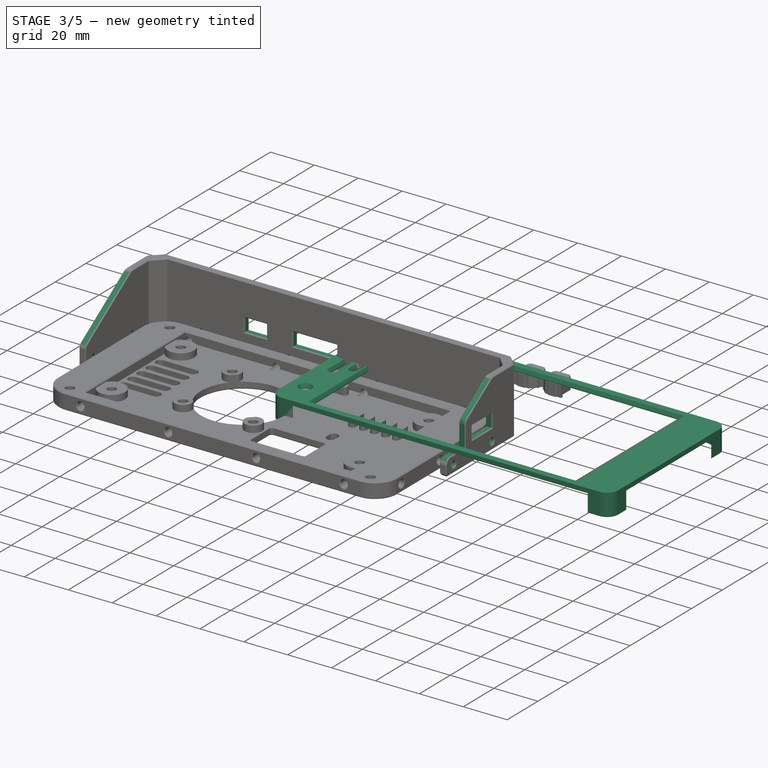
[diagram: stage 3 of 5 — iso view after this stage's code; geometry added in this stage tinted green]
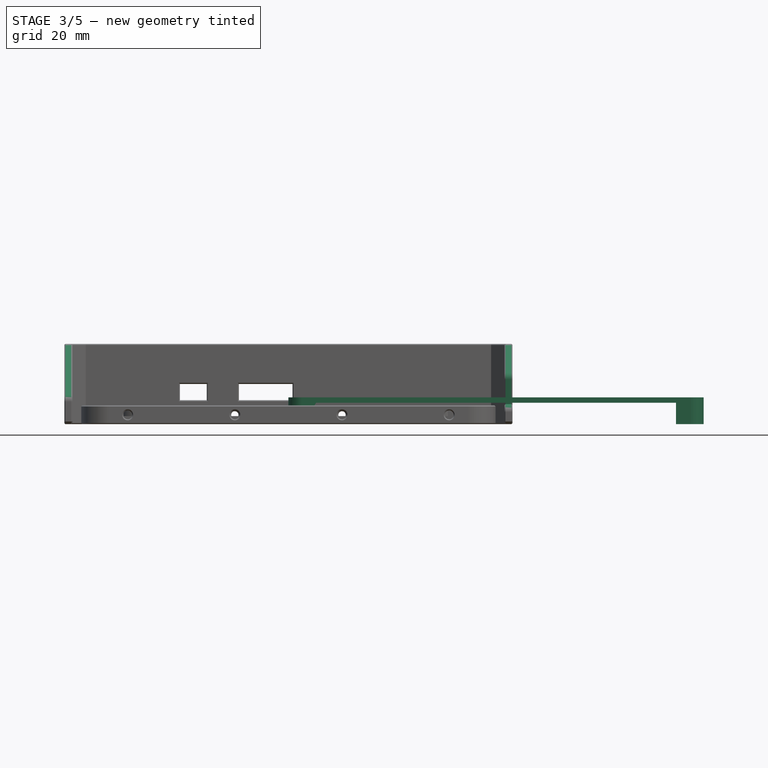
[diagram: stage 3 of 5 — front view after this stage's code; geometry added in this stage tinted green]
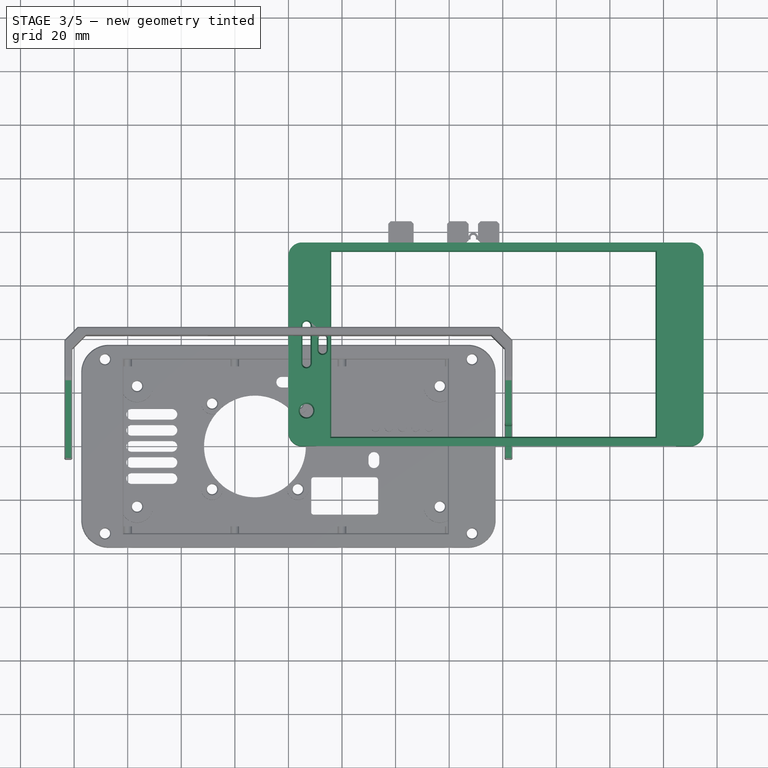
[diagram: stage 3 of 5 — top view after this stage's code; geometry added in this stage tinted green]
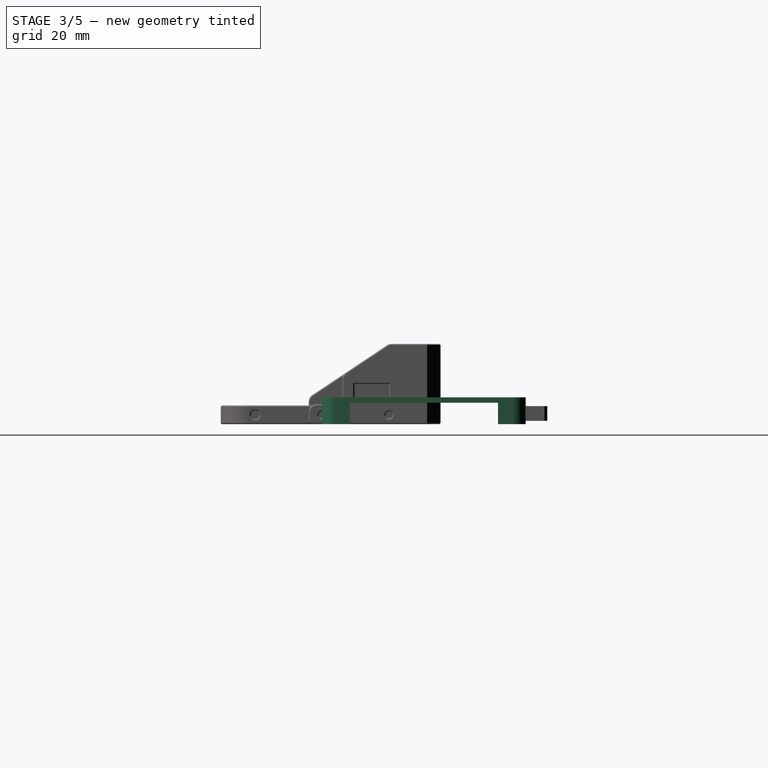
[diagram: stage 3 of 5 — right view after this stage's code; geometry added in this stage tinted green]
FEATURE [Sketcher::SketchObject] Sketch021
  ExternalGeometry = -> [Chamfer036003003]
  FullyConstrained = true
  MapMode = 5
  Placement = pos=(83.65,0,0) rot=(0.57735,0.57735,0.57735;2.0944rad)
  Support = -> [Chamfer036003003]
  sketch-geometry (3):
    g0: LineSegment StartX=-5 StartY=10 StartZ=0 EndX=25 EndY=30 EndZ=0
    g1: LineSegment StartX=25 StartY=30 StartZ=0 EndX=-5 EndY=30 EndZ=0
    g2: LineSegment StartX=-5 StartY=30 StartZ=0 EndX=-5 EndY=10 EndZ=0
  constraints (8):
    c: PointOnObject(g0,g-4)
    c: PointOnObject(g0,g-3)
    c: Coincident(g0,g1)
    c: Coincident(g1,g-4)
    c: Coincident(g1,g2)
    c: Coincident(g2,g0)
    c: DistanceY(g-1,g0) = 10
    c: DistanceX(g1,g1) = 30
FEATURE [PartDesign::Pocket] Pocket008013
  BaseFeature = -> Chamfer036003003
  Length = 5
  Length2 = 100
  Profile = -> Sketch021
  Type = 1
FEATURE [Sketcher::SketchObject] Sketch022
  FullyConstrained = true
  MapMode = 5
  Placement = pos=(0,44.15,0) rot=(0,0.707107,0.707107;3.14159rad)
  Support = -> [Pocket008013]
  sketch-geometry (4):
    g0: Circle CenterX=-60 CenterY=3.5 CenterZ=0 NormalX=0 NormalY=0 NormalZ=1 AngleXU=0 Radius=1.35
    g1: Circle CenterX=-20 CenterY=3.5 CenterZ=0 NormalX=0 NormalY=0 NormalZ=1 AngleXU=0 Radius=1.35
    g2: Circle CenterX=20 CenterY=3.5 CenterZ=0 NormalX=0 NormalY=0 NormalZ=1 AngleXU=0 Radius=1.35
    g3: Circle CenterX=60 CenterY=3.5 CenterZ=0 NormalX=0 NormalY=0 NormalZ=1 AngleXU=0 Radius=1.35
  constraints (12):
    c: Horizontal(g3,g2)
    c: Horizontal(g2,g1)
    c: Horizontal(g1,g0)
    c: Equal(g0,g1)
    c: Equal(g1,g2)
    c: Equal(g2,g3)
    c: DistanceX(g-1,g2) = 20
    c: DistanceX(g2,g3) = 40
    c: DistanceX(g1,g-1) = 20
    c: DistanceX(g0,g1) = 40
    c: DistanceY(g-1,g1) = 3.5
    c: Radius(g3) = 1.35
FEATURE [PartDesign::Pocket] Pocket008014
  BaseFeature = -> Pocket008013
  Length = 5
  Length2 = 100
  Profile = -> Sketch022
  Type = 1
FEATURE [Sketcher::SketchObject] Sketch023
  FullyConstrained = true
  MapMode = 5
  Placement = pos=(83.65,0,0) rot=(0.57735,0.57735,0.57735;2.0944rad)
  Support = -> [Pocket008014]
  sketch-geometry (2):
    g0: Circle CenterX=0 CenterY=3.5 CenterZ=0 NormalX=0 NormalY=0 NormalZ=1 AngleXU=0 Radius=1.35
    g1: Circle CenterX=25 CenterY=3.5 CenterZ=0 NormalX=0 NormalY=0 NormalZ=1 AngleXU=0 Radius=1.35
  constraints (6):
    c: PointOnObject(g0,g-2)
    c: Horizontal(g1,g0)
    c: Equal(g0,g1)
    c: Radius(g1) = 1.35
    c: DistanceY(g-1,g0) = 3.5
    c: DistanceX(g0,g1) = 25
FEATURE [PartDesign::Pocket] Pocket008015
  BaseFeature = -> Pocket008014
  Length = 5
  Length2 = 100
  Profile = -> Sketch023
  Type = 1
FEATURE [Sketcher::SketchObject] Sketch024
  FullyConstrained = true
  MapMode = 5
  Placement = pos=(83.65,0,0) rot=(0.57735,0.57735,0.57735;2.0944rad)
  Support = -> [Pocket008015]
  sketch-geometry (4):
    g0: LineSegment StartX=12 StartY=15 StartZ=0 EndX=25 EndY=15 EndZ=0
    g1: LineSegment StartX=25 StartY=15 StartZ=0 EndX=25 EndY=9 EndZ=0
    g2: LineSegment StartX=25 StartY=9 StartZ=0 EndX=12 EndY=9 EndZ=0
    g3: LineSegment StartX=12 StartY=9 StartZ=0 EndX=12 EndY=15 EndZ=0
  constraints (12):
    c: Coincident(g0,g1)
    c: Coincident(g1,g2)
    c: Coincident(g2,g3)
    c: Coincident(g3,g0)
    c: Horizontal(g0)
    c: Horizontal(g2)
    c: Vertical(g1)
    c: Vertical(g3)
    c: DistanceX(g0,g0) = 13
    c: DistanceY(g1,g1) = 6
    c: DistanceY(g-1,g2) = 9
    c: DistanceX(g-1,g2) = 12
FEATURE [PartDesign::Pocket] Pocket008016
  BaseFeature = -> Pocket008015
  Length = 5
  Length2 = 100
  Profile = -> Sketch024
  Type = 0
FEATURE [Sketcher::SketchObject] Sketch025
  FullyConstrained = true
  MapMode = 5
  Placement = pos=(0,44.15,0) rot=(0,0.707107,0.707107;3.14159rad)
  Support = -> [Pocket008016]
  sketch-geometry (8):
    g0: LineSegment StartX=-1.5 StartY=15 StartZ=0 EndX=18.5 EndY=15 EndZ=0
    g1: LineSegment StartX=18.5 StartY=15 StartZ=0 EndX=18.5 EndY=9 EndZ=0
    g2: LineSegment StartX=18.5 StartY=9 StartZ=0 EndX=-1.5 EndY=9 EndZ=0
    g3: LineSegment StartX=-1.5 StartY=9 StartZ=0 EndX=-1.5 EndY=15 EndZ=0
    g4: LineSegment StartX=30.5 StartY=15 StartZ=0 EndX=40.5 EndY=15 EndZ=0
    g5: LineSegment StartX=40.5 StartY=15 StartZ=0 EndX=40.5 EndY=9 EndZ=0
    g6: LineSegment StartX=40.5 StartY=9 StartZ=0 EndX=30.5 EndY=9 EndZ=0
    g7: LineSegment StartX=30.5 StartY=9 StartZ=0 EndX=30.5 EndY=15 EndZ=0
  constraints (24):
    c: Coincident(g0,g1)
    c: Coincident(g1,g2)
    c: Coincident(g2,g3)
    c: Coincident(g3,g0)
    c: Horizontal(g0)
    c: Horizontal(g2)
    c: Vertical(g1)
    c: Vertical(g3)
    c: Coincident(g4,g5)
    c: Coincident(g5,g6)
    c: Coincident(g6,g7)
    c: Coincident(g7,g4)
    c: Horizontal(g4)
    c: Horizontal(g6)
    c: Vertical(g5)
    c: Vertical(g7)
    c: DistanceX(g4,g4) = 10
    c: DistanceX(g0,g0) = 20
    c: DistanceX(g0,g4) = 12
    c: DistanceY(g3,g3) = 6
    c: DistanceY(g-1,g2) = 9
    c: DistanceX(g2,g-1) = 1.5
    c: Horizontal(g0,g4)
    c: Horizontal(g6,g1)
FEATURE [PartDesign::Pocket] Pocket008017
  BaseFeature = -> Pocket008016
  Length = 5
  Length2 = 100
  Profile = -> Sketch025
  Type = 0
FEATURE [PartDesign::Chamfer] Chamfer036003004
  Angle = 45
  Base = -> Pocket008017 [Edge18,Edge11]
  BaseFeature = -> Pocket008017
  ChamferType = 0
  FlipDirection = false
  Size = 1
  Size2 = 1
  SupportTransform = false
FEATURE [PartDesign::Fillet] Fillet002
  Base = -> Chamfer036003004 [Edge26,Edge24,Edge32,Edge90]
  BaseFeature = -> Chamfer036003004
  Radius = 3
  SupportTransform = false
FEATURE [Part::Feature] Chamfer028001001
  Placement = pos=(-77.5,-38,0) rot=(0,0,1;0rad)
  shape: bbox 159 x 90 x 10 mm, 119 faces (baked)
FEATURE [PartDesign::FeatureBase] BaseFeature001
  BaseFeature = -> Chamfer028001001
FEATURE [Sketcher::SketchObject] Sketch031
  ExternalGeometry = -> [BaseFeature001]
  FullyConstrained = true
  MapMode = 5
  Placement = pos=(0,0,8) rot=(1,0,0;3.14159rad)
  Support = -> [BaseFeature001]
  sketch-geometry (8):
    g0: LineSegment StartX=0 StartY=0 StartZ=0 EndX=155 EndY=0 EndZ=0
    g1: LineSegment StartX=155 StartY=0 StartZ=0 EndX=155 EndY=-76 EndZ=0
    g2: LineSegment StartX=155 StartY=-76 StartZ=0 EndX=0 EndY=-76 EndZ=0
    g3: LineSegment StartX=0 StartY=-76 StartZ=0 EndX=0 EndY=0 EndZ=0
    g4: LineSegment StartX=-2 StartY=7 StartZ=0 EndX=157 EndY=7 EndZ=0
    g5: LineSegment StartX=157 StartY=7 StartZ=0 EndX=157 EndY=-83 EndZ=0
    g6: LineSegment StartX=157 StartY=-83 StartZ=0 EndX=-2 EndY=-83 EndZ=0
    g7: LineSegment StartX=-2 StartY=-83 StartZ=0 EndX=-2 EndY=7 EndZ=0
  constraints (23):
    c: Coincident(g0,g1)
    c: Coincident(g1,g2)
    c: Coincident(g2,g3)
    c: Coincident(g3,g0)
    c: Horizontal(g0)
    c: Horizontal(g2)
    c: Vertical(g1)
    c: Vertical(g3)
    c: Coincident(g0,g-1)
    c: Horizontal(g1,g-5)
    c: Vertical(g1,g-7)
    c: Coincident(g4,g5)
    c: Coincident(g5,g6)
    c: Coincident(g6,g7)
    c: Coincident(g7,g4)
    c: Horizontal(g4)
    c: Horizontal(g6)
    c: Vertical(g5)
    c: Vertical(g7)
    c: Horizontal(g4,g-8)
    c: Vertical(g-9,g4)
    c: Vertical(g-11,g5)
    c: Horizontal(g-10,g5)
FEATURE [PartDesign::Pocket] Pocket008023
  BaseFeature = -> BaseFeature001
  Length = 5
  Length2 = 100
  Midplane = true
  Profile = -> Sketch031
  Type = 1
FEATURE [PartDesign::Body] Body  label="front"
  BaseFeature = -> Pocket008001
  Group = -> [BaseFeature,Pad,Sketch,Pocket,Fillet,Sketch001,Pad001,Sketch002,Pad002,Sketch003,Pad003,Chamfer,Sketch004,Pocket008002,Pad004,Sketch005,Pad005,Chamfer027002,Sketch006,Pocket008003,Sketch007,Pocket008004,Chamfer027003,Chamfer027004,Chamfer027005,Sketch032,Pocket008024]
  Origin = -> Origin
  Placement = pos=(-77.5,-38,0) rot=(0,0,1;0rad)
  Tip = -> Pocket008024
FEATURE [PartDesign::FeatureBase] Clone
  BaseFeature = -> Pocket008023
FEATURE [Sketcher::SketchObject] Sketch033
  ExternalGeometry = -> [Clone]
  FullyConstrained = true
  MapMode = 5
  Placement = pos=(0,0,10) rot=(0,0,1;0rad)
  Support = -> [Clone]
  sketch-geometry (12):
    g0: ArcOfCircle CenterX=10.35 CenterY=65.65 CenterZ=0 NormalX=0 NormalY=0 NormalZ=1 AngleXU=0 Radius=10.35 StartAngle=1.5708 EndAngle=3.14159
    g1: ArcOfCircle CenterX=10.35 CenterY=10.35 CenterZ=0 NormalX=0 NormalY=0 NormalZ=1 AngleXU=0 Radius=10.35 StartAngle=3.14159 EndAngle=4.71239
    g2: ArcOfCircle CenterX=144.65 CenterY=65.65 CenterZ=0 NormalX=0 NormalY=0 NormalZ=1 AngleXU=0 Radius=10.35 StartAngle=0 EndAngle=1.5708
    g3: ArcOfCircle CenterX=144.65 CenterY=10.35 CenterZ=0 NormalX=0 NormalY=0 NormalZ=1 AngleXU=0 Radius=10.35 StartAngle=4.71239 EndAngle=6.28319
    g4: LineSegment StartX=144.65 StartY=76 StartZ=0 EndX=155 EndY=76 EndZ=0
    g5: LineSegment StartX=155 StartY=65.65 StartZ=0 EndX=155 EndY=76 EndZ=0
    g6: LineSegment StartX=0 StartY=65.65 StartZ=0 EndX=0 EndY=76 EndZ=0
    g7: LineSegment StartX=10.35 StartY=76 StartZ=0 EndX=0 EndY=76 EndZ=0
    g8: LineSegment StartX=0 StartY=10.35 StartZ=0 EndX=0 EndY=0 EndZ=0
    g9: LineSegment StartX=0 StartY=0 StartZ=0 EndX=10.35 EndY=0 EndZ=0
    g10: LineSegment StartX=144.65 StartY=-1.8e-15 StartZ=0 EndX=155 EndY=0 EndZ=0
    g11: LineSegment StartX=155 StartY=10.35 StartZ=0 EndX=155 EndY=0 EndZ=0
  constraints (36):
    c: PointOnObject(g0,g-3)
    c: PointOnObject(g0,g-2)
    c: PointOnObject(g1,g-2)
    c: PointOnObject(g1,g-1)
    c: PointOnObject(g2,g-3)
    c: PointOnObject(g2,g-4)
    c: PointOnObject(g3,g-4)
    c: PointOnObject(g3,g-1)
    c: Vertical(g1,g1)
    c: Vertical(g1,g0)
    c: Vertical(g0,g0)
    c: Vertical(g2,g2)
    c: Vertical(g2,g3)
    c: Vertical(g3,g3)
    c: Horizontal(g0,g0)
    c: Horizontal(g0,g2)
    c: Horizontal(g2,g2)
    c: Horizontal(g3,g3)
    c: Horizontal(g1,g1)
    c: Radius(g2) = 10.35
    c: Tangent(g2,g4) = 1.5708
    c: Coincident(g5,g2)
    c: Coincident(g5,g4)
    c: Vertical(g5)
    c: Coincident(g6,g0)
    c: Coincident(g6,g-3)
    c: Coincident(g7,g0)
    c: Coincident(g7,g6)
    c: Coincident(g8,g1)
    c: Coincident(g8,g-1)
    c: Coincident(g9,g8)
    c: Coincident(g9,g1)
    c: Coincident(g10,g3)
    c: Coincident(g10,g-4)
    c: Coincident(g11,g3)
    c: Coincident(g11,g10)
FEATURE [PartDesign::Pad] Pad012
  BaseFeature = -> Clone
  Direction = (1,1,1)
  Length = 10
  Length2 = 100
  Profile = -> Sketch033
  Refine = true
  Type = 3
  UpToFace = -> Clone [Face10]
FEATURE [PartDesign::Fillet] Fillet004
  Base = -> Pad012 [Edge18,Edge7,Edge101,Edge11]
  BaseFeature = -> Pad012
  Radius = 5
  SupportTransform = false
FEATURE [PartDesign::Body] Body005  label="face-corner-fix"
  BaseFeature = -> Pocket008023
  Group = -> [Clone,Sketch033,Pad012,Fillet004,Sketch034,Pad013,Sketch035,Pocket008025,Sketch036,Pad014,Pad015,Fillet005,Chamfer036003009]
  Origin = -> Origin005
  Placement = pos=(-77.5,-38,0) rot=(0,0,1;0rad)
  Tip = -> Chamfer036003009
FEATURE [Part::Feature] Fusion001  label="front-r1"
  shape: bbox 161 x 82 x 18 mm, 129 faces (baked)
FEATURE [Sketcher::SketchObject] Sketch037
  FullyConstrained = true
  MapMode = 5
  Placement = pos=(83.65,0,0) rot=(0.57735,0.57735,0.57735;2.0944rad)
  Support = -> [Fillet002]
  sketch-geometry (4):
    g0: LineSegment StartX=7.5 StartY=7.5 StartZ=0 EndX=-7.5 EndY=7.5 EndZ=0
    g1: LineSegment StartX=-7.5 StartY=7.5 StartZ=0 EndX=-7.5 EndY=22.5 EndZ=0
    g2: LineSegment StartX=-7.5 StartY=22.5 StartZ=0 EndX=7.5 EndY=22.5 EndZ=0
    g3: LineSegment StartX=7.5 StartY=22.5 StartZ=0 EndX=7.5 EndY=7.5 EndZ=0
  constraints (12):
    c: Coincident(g0,g1)
    c: Coincident(g1,g2)
    c: Coincident(g2,g3)
    c: Coincident(g3,g0)
    c: Horizontal(g0)
    c: Horizontal(g2)
    c: Vertical(g1)
    c: Vertical(g3)
    c: DistanceX(g2,g2) = 15
    c: DistanceY(g1,g1) = 15
    c: DistanceX(g-1,g0) = 7.5
    c: DistanceY(g-1,g0) = 7.5
FEATURE [PartDesign::Pocket] Pocket008026
  BaseFeature = -> Fillet002
  Length = 5
  Length2 = 100
  Profile = -> Sketch037
  Type = 0
FEATURE [PartDesign::Fillet] Fillet006
  Base = -> Pocket008026 [Edge117]
  BaseFeature = -> Pocket008026
  Radius = 3
  SupportTransform = false
FEATURE [PartDesign::Fillet] Fillet007
  Base = -> Fillet006 [Edge23]
  BaseFeature = -> Fillet006
  Radius = 3
  SupportTransform = false
FEATURE [PartDesign::Chamfer] Chamfer036003010
  Angle = 45
  Base = -> Fillet007 [Edge25,Edge30,Edge42,Edge22,Edge18,Edge23,Edge27,Edge31,Edge55,Edge43,Edge53,Edge51,Edge49,Edge47,Edge83,Edge82,Edge81,Edge80,Edge77,Edge36,Edge38,Edge40,Edge41,Edge39,Edge37,Edge35,Edge33,Edge71,Edge69,Edge70,Edge72,Edge73,Edge50,Edge52,Edge54,Edge46,Edge11,Edge9,Edge7,Edge5,+38 more]
  BaseFeature = -> Fillet007
  ChamferType = 0
  FlipDirection = false
  Size = 0.4
  Size2 = 1
  SupportTransform = false
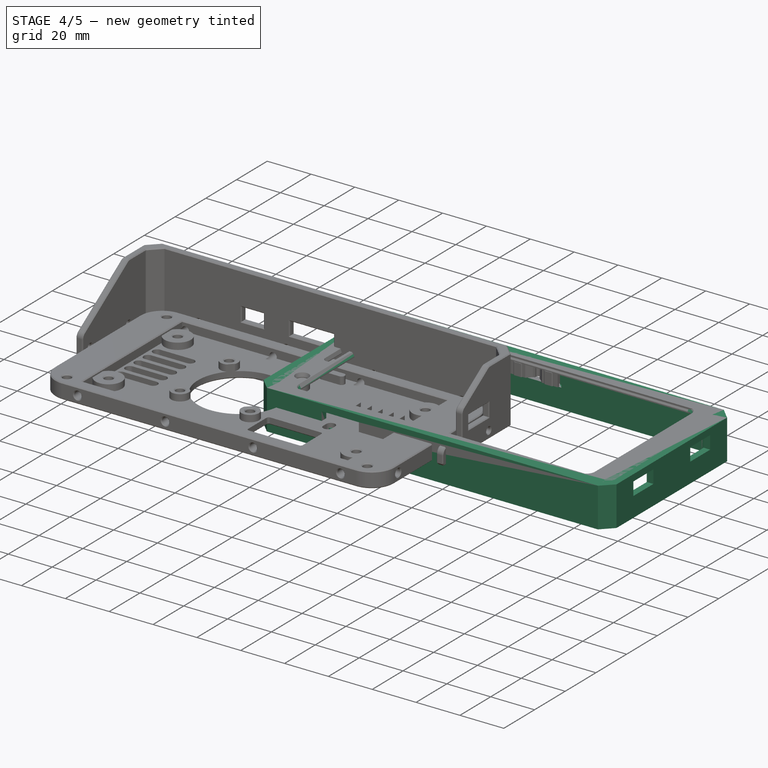
[diagram: stage 4 of 5 — iso view after this stage's code; geometry added in this stage tinted green]
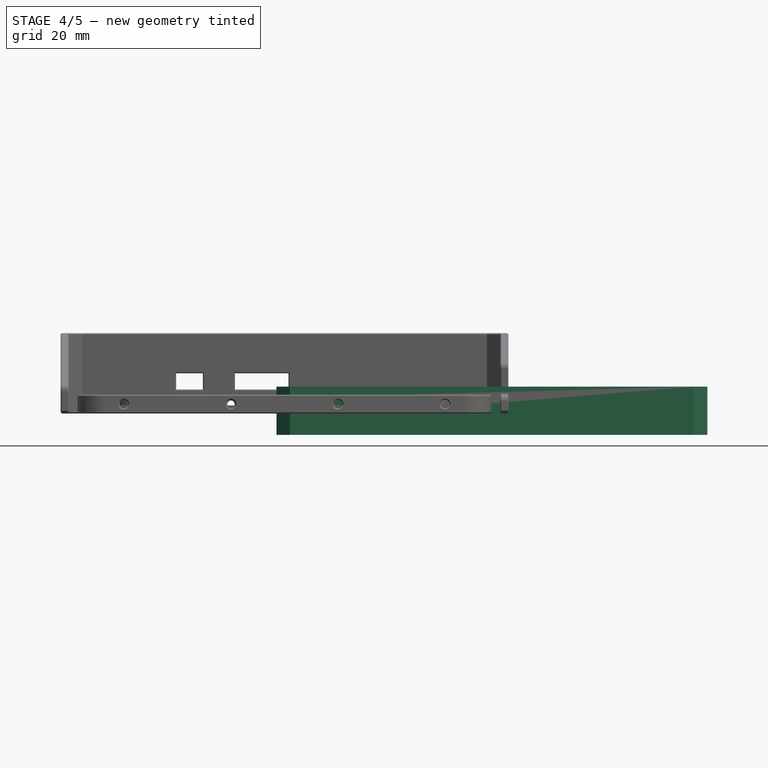
[diagram: stage 4 of 5 — front view after this stage's code; geometry added in this stage tinted green]
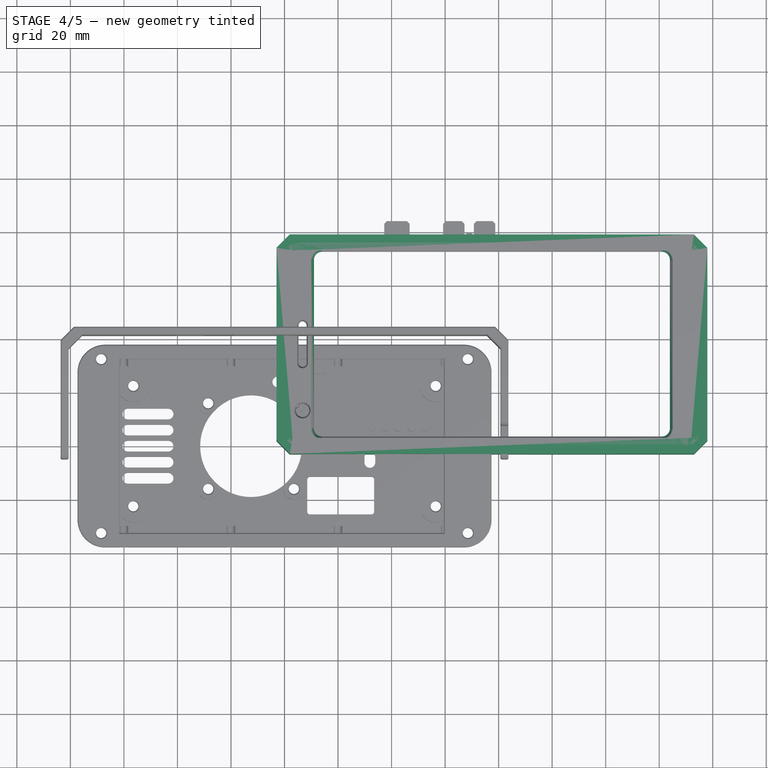
[diagram: stage 4 of 5 — top view after this stage's code; geometry added in this stage tinted green]
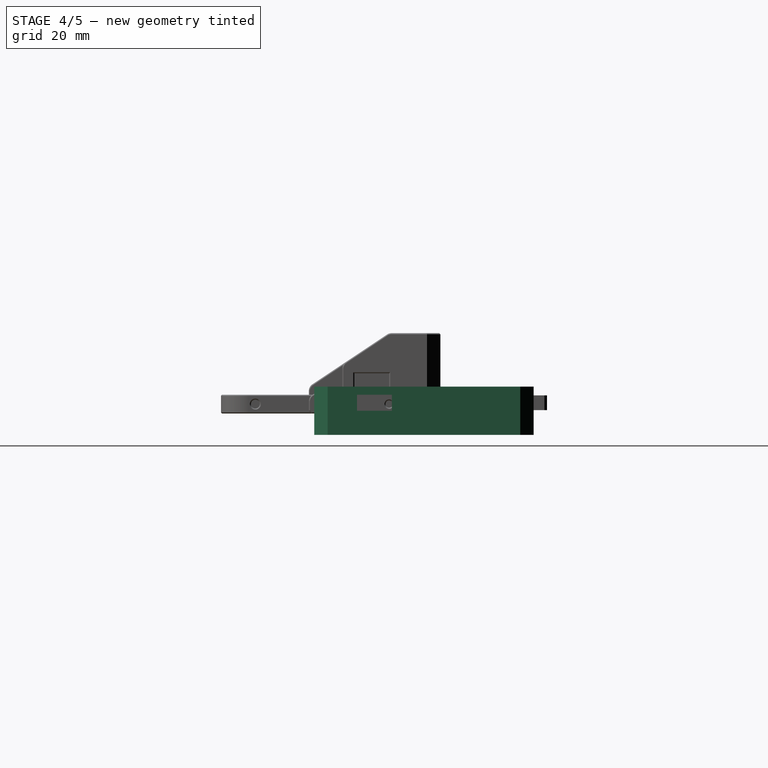
[diagram: stage 4 of 5 — right view after this stage's code; geometry added in this stage tinted green]
FEATURE [PartDesign::Body] Body004  label="face"
  BaseFeature = -> Chamfer028001001
  Group = -> [BaseFeature001,Sketch031,Pocket008023,Fillet003]
  Origin = -> Origin004
  Placement = pos=(-77.5,-38,0) rot=(0,0,1;0rad)
  Tip = -> Fillet003
FEATURE [Part::Feature] Pocket008001  label="top-pocket001"
  shape: bbox 165 x 90 x 10 mm, 54 faces (baked)
FEATURE [PartDesign::FeatureBase] BaseFeature
  BaseFeature = -> Pocket008001
FEATURE [PartDesign::Pad] Pad
  BaseFeature = -> BaseFeature
  Direction = (1,1,1)
  Length = 8
  Length2 = 100
  Profile = -> BaseFeature [Face2,Face6,Face17,Face21,Face46,Face36]
  Refine = true
  Reversed = true
  Type = 0
FEATURE [Sketcher::SketchObject] Sketch
  ExternalGeometry = -> [Pad]
  FullyConstrained = true
  MapMode = 5
  Placement = pos=(0,0,-8) rot=(1,0,0;3.14159rad)
  Support = -> [Pad]
  sketch-geometry (8):
    g0: LineSegment StartX=-3 StartY=3 StartZ=0 EndX=158 EndY=3 EndZ=0
    g1: LineSegment StartX=158 StartY=3 StartZ=0 EndX=158 EndY=-79 EndZ=0
    g2: LineSegment StartX=158 StartY=-79 StartZ=0 EndX=-3 EndY=-79 EndZ=0
    g3: LineSegment StartX=-3 StartY=-79 StartZ=0 EndX=-3 EndY=3 EndZ=0
    g4: LineSegment StartX=-5 StartY=7 StartZ=0 EndX=160 EndY=7 EndZ=0
    g5: LineSegment StartX=160 StartY=7 StartZ=0 EndX=160 EndY=-83 EndZ=0
    g6: LineSegment StartX=160 StartY=-83 StartZ=0 EndX=-5 EndY=-83 EndZ=0
    g7: LineSegment StartX=-5 StartY=-83 StartZ=0 EndX=-5 EndY=7 EndZ=0
  constraints (22):
    c: Coincident(g0,g1)
    c: Coincident(g1,g2)
    c: Coincident(g2,g3)
    c: Coincident(g3,g0)
    c: Horizontal(g0)
    c: Horizontal(g2)
    c: Vertical(g1)
    c: Vertical(g3)
    c: DistanceY(g-1,g0) = 3
    c: DistanceX(g0,g-1) = 3
    c: DistanceX(g-3,g1) = 3
    c: DistanceY(g1,g-3) = 3
    c: Coincident(g4,g5)
    c: Coincident(g5,g6)
    c: Coincident(g6,g7)
    c: Coincident(g7,g4)
    c: Horizontal(g4)
    c: Horizontal(g6)
    c: Vertical(g5)
    c: Vertical(g7)
    c: Coincident(g4,g-5)
    c: Coincident(g5,g-6)
FEATURE [PartDesign::Pocket] Pocket
  BaseFeature = -> Pad
  Length = 5
  Length2 = 100
  Profile = -> Sketch
  Type = 1
FEATURE [PartDesign::Fillet] Fillet
  Base = -> Pocket [Edge102,Edge103,Edge109,Edge142]
  BaseFeature = -> Pocket
  Radius = 8.5
  SupportTransform = false
FEATURE [Sketcher::SketchObject] Sketch001
  ExternalGeometry = -> [Fillet]
  FullyConstrained = true
  MapMode = 5
  Placement = pos=(0,0,-8) rot=(1,0,0;3.14159rad)
  Support = -> [Fillet]
  sketch-geometry (24):
    g0: LineSegment StartX=27 StartY=3 StartZ=0 EndX=44 EndY=3 EndZ=0
    g1: LineSegment StartX=44 StartY=3 StartZ=0 EndX=44 EndY=0 EndZ=0
    g2: LineSegment StartX=44 StartY=0 StartZ=0 EndX=27 EndY=0 EndZ=0
    g3: LineSegment StartX=27 StartY=0 StartZ=0 EndX=27 EndY=3 EndZ=0
    g4: LineSegment StartX=155 StartY=-13 StartZ=0 EndX=158 EndY=-13 EndZ=0
    g5: LineSegment StartX=158 StartY=-13 StartZ=0 EndX=158 EndY=-26 EndZ=0
    g6: LineSegment StartX=158 StartY=-26 StartZ=0 EndX=155 EndY=-26 EndZ=0
    g7: LineSegment StartX=155 StartY=-26 StartZ=0 EndX=155 EndY=-13 EndZ=0
    g8: LineSegment StartX=155 StartY=-50 StartZ=0 EndX=158 EndY=-50 EndZ=0
    g9: LineSegment StartX=158 StartY=-50 StartZ=0 EndX=158 EndY=-63 EndZ=0
    g10: LineSegment StartX=158 StartY=-63 StartZ=0 EndX=155 EndY=-63 EndZ=0
    g11: LineSegment StartX=155 StartY=-63 StartZ=0 EndX=155 EndY=-50 EndZ=0
    g12: LineSegment StartX=59 StartY=-78 StartZ=0 EndX=79 EndY=-78 EndZ=0
    g13: LineSegment StartX=79 StartY=-78 StartZ=0 EndX=79 EndY=-79 EndZ=0
    g14: LineSegment StartX=79 StartY=-79 StartZ=0 EndX=59 EndY=-79 EndZ=0
    g15: LineSegment StartX=59 StartY=-79 StartZ=0 EndX=59 EndY=-78 EndZ=0
    g16: LineSegment StartX=37 StartY=-78 StartZ=0 EndX=47 EndY=-78 EndZ=0
    g17: LineSegment StartX=47 StartY=-78 StartZ=0 EndX=47 EndY=-79 EndZ=0
    g18: LineSegment StartX=47 StartY=-79 StartZ=0 EndX=37 EndY=-79 EndZ=0
    g19: LineSegment StartX=37 StartY=-79 StartZ=0 EndX=37 EndY=-78 EndZ=0
    g20: LineSegment StartX=-3 StartY=-18 StartZ=0 EndX=0 EndY=-18 EndZ=0
    g21: LineSegment StartX=0 StartY=-18 StartZ=0 EndX=0 EndY=-26 EndZ=0
    g22: LineSegment StartX=0 StartY=-26 StartZ=0 EndX=-3 EndY=-26 EndZ=0
    g23: LineSegment StartX=-3 StartY=-26 StartZ=0 EndX=-3 EndY=-18 EndZ=0
  constraints (60):
    c: Coincident(g0,g1)
    c: Coincident(g1,g2)
    c: Coincident(g2,g3)
    c: Coincident(g3,g0)
    c: Horizontal(g0)
    c: Horizontal(g2)
    c: Vertical(g1)
    c: Vertical(g3)
    c: Coincident(g0,g-3)
    c: Coincident(g1,g-4)
    c: Coincident(g4,g5)
    c: Coincident(g5,g6)
    c: Coincident(g6,g7)
    c: Coincident(g7,g4)
    c: Horizontal(g4)
    c: Horizontal(g6)
    c: Vertical(g5)
    c: Vertical(g7)
    c: Coincident(g4,g-11)
    c: Coincident(g5,g-12)
    c: Coincident(g8,g9)
    c: Coincident(g9,g10)
    c: Coincident(g10,g11)
    c: Coincident(g11,g8)
    c: Horizontal(g8)
    c: Horizontal(g10)
    c: Vertical(g9)
    c: Vertical(g11)
    c: Coincident(g8,g-13)
    c: Coincident(g9,g-14)
    c: Coincident(g12,g13)
    c: Coincident(g13,g14)
    c: Coincident(g14,g15)
    c: Coincident(g15,g12)
    c: Horizontal(g12)
    c: Horizontal(g14)
    c: Vertical(g13)
    c: Vertical(g15)
    c: Coincident(g12,g-9)
    c: Coincident(g13,g-10)
    c: Coincident(g16,g17)
    c: Coincident(g17,g18)
    c: Coincident(g18,g19)
    c: Coincident(g19,g16)
    c: Horizontal(g16)
    c: Horizontal(g18)
    c: Vertical(g17)
    c: Vertical(g19)
    c: Coincident(g16,g-7)
    c: Coincident(g17,g-8)
    c: Coincident(g20,g21)
    c: Coincident(g21,g22)
    c: Coincident(g22,g23)
    c: Coincident(g23,g20)
    c: Horizontal(g20)
    c: Horizontal(g22)
    c: Vertical(g21)
    c: Vertical(g23)
    c: Coincident(g20,g-5)
    c: Coincident(g21,g-6)
FEATURE [PartDesign::Pad] Pad001
  BaseFeature = -> Fillet
  Direction = (1,1,1)
  Length = 9
  Length2 = 100
  Profile = -> Sketch001
  Refine = true
  Reversed = true
  Type = 0
FEATURE [Sketcher::SketchObject] Sketch002
  ExternalGeometry = -> [Pad001]
  FullyConstrained = true
  MapMode = 5
  Placement = pos=(0,0,8) rot=(1,0,0;3.14159rad)
  Support = -> [Pad001]
  sketch-geometry (4):
    g0: LineSegment StartX=49 StartY=-76 StartZ=0 EndX=57 EndY=-76 EndZ=0
    g1: LineSegment StartX=57 StartY=-76 StartZ=0 EndX=57 EndY=-78 EndZ=0
    g2: LineSegment StartX=57 StartY=-78 StartZ=0 EndX=49 EndY=-78 EndZ=0
    g3: LineSegment StartX=49 StartY=-78 StartZ=0 EndX=49 EndY=-76 EndZ=0
  constraints (12):
    c: Coincident(g0,g1)
    c: Coincident(g1,g2)
    c: Coincident(g2,g3)
    c: Coincident(g3,g0)
    c: Horizontal(g0)
    c: Horizontal(g2)
    c: Vertical(g1)
    c: Vertical(g3)
    c: Horizontal(g-6,g0)
    c: Horizontal(g2,g-3)
    c: DistanceX(g-3,g2) = 2
    c: DistanceX(g1,g-4) = 2
FEATURE [PartDesign::Pad] Pad002
  BaseFeature = -> Pad001
  Direction = (1,1,1)
  Length = 10
  Length2 = 100
  Profile = -> Sketch002
  Refine = true
  Type = 3
  UpToFace = -> Pad001 [Face27]
FEATURE [Sketcher::SketchObject] Sketch003
  ExternalGeometry = -> [Pad002]
  FullyConstrained = true
  MapMode = 5
  Placement = pos=(0,0,-8) rot=(1,0,0;3.14159rad)
  Support = -> [Pad002]
  sketch-geometry (4):
    g0: LineSegment StartX=35 StartY=-76 StartZ=0 EndX=81 EndY=-76 EndZ=0
    g1: LineSegment StartX=81 StartY=-76 StartZ=0 EndX=81 EndY=-78 EndZ=0
    g2: LineSegment StartX=81 StartY=-78 StartZ=0 EndX=35 EndY=-78 EndZ=0
    g3: LineSegment StartX=35 StartY=-78 StartZ=0 EndX=35 EndY=-76 EndZ=0
  constraints (10):
    c: Coincident(g0,g1)
    c: Coincident(g1,g2)
    c: Coincident(g2,g3)
    c: Coincident(g3,g0)
    c: Horizontal(g0)
    c: Horizontal(g2)
    c: Vertical(g1)
    c: Vertical(g3)
    c: Coincident(g0,g-3)
    c: Coincident(g1,g-4)
FEATURE [PartDesign::Pad] Pad003
  BaseFeature = -> Pad002
  Direction = (1,1,1)
  Length = 8
  Length2 = 100
  Profile = -> Sketch003
  Refine = true
  Reversed = true
  Type = 0
FEATURE [PartDesign::Chamfer] Chamfer
  Angle = 45
  Base = -> Pad003 [Edge19,Edge20,Edge36,Edge26]
  BaseFeature = -> Pad003
  ChamferType = 0
  FlipDirection = false
  Size = 5
  Size2 = 1
  SupportTransform = false
FEATURE [Sketcher::SketchObject] Sketch004
  ExternalGeometry = -> [Chamfer]
  FullyConstrained = true
  MapMode = 5
  Placement = pos=(0,0,8) rot=(1,0,0;3.14159rad)
  Support = -> [Chamfer]
  sketch-geometry (4):
    g0: LineSegment StartX=3 StartY=-3 StartZ=0 EndX=152 EndY=-3 EndZ=0
    g1: LineSegment StartX=152 StartY=-3 StartZ=0 EndX=152 EndY=-73 EndZ=0
    g2: LineSegment StartX=152 StartY=-73 StartZ=0 EndX=3 EndY=-73 EndZ=0
    g3: LineSegment StartX=3 StartY=-73 StartZ=0 EndX=3 EndY=-3 EndZ=0
  constraints (12):
    c: Coincident(g0,g1)
    c: Coincident(g1,g2)
    c: Coincident(g2,g3)
    c: Coincident(g3,g0)
    c: Horizontal(g0)
    c: Horizontal(g2)
    c: Vertical(g1)
    c: Vertical(g3)
    c: DistanceY(g0,g-5) = 3
    c: DistanceY(g-6,g2) = 3
    c: DistanceX(g-3,g2) = 3
    c: DistanceX(g1,g-4) = 3
FEATURE [PartDesign::Pocket] Pocket008002
  BaseFeature = -> Chamfer
  Length = 5
  Length2 = 100
  Profile = -> Sketch004
  Type = 1
FEATURE [PartDesign::Pad] Pad004
  BaseFeature = -> Pocket008002
  Direction = (1,1,1)
  Length = 1
  Length2 = 100
  Profile = -> Pocket008002 [Face54,Face53]
  Type = 0
FEATURE [Sketcher::SketchObject] Sketch005
  ExternalGeometry = -> [Pad004]
  FullyConstrained = true
  MapMode = 5
  Placement = pos=(0,0,8) rot=(1,0,0;3.14159rad)
  Support = -> [Pad004]
  sketch-geometry (8):
    g0: LineSegment StartX=35 StartY=-76 StartZ=0 EndX=49 EndY=-76 EndZ=0
    g1: LineSegment StartX=49 StartY=-76 StartZ=0 EndX=49 EndY=-78 EndZ=0
    g2: LineSegment StartX=49 StartY=-78 StartZ=0 EndX=35 EndY=-78 EndZ=0
    g3: LineSegment StartX=35 StartY=-78 StartZ=0 EndX=35 EndY=-76 EndZ=0
    g4: LineSegment StartX=57 StartY=-76 StartZ=0 EndX=81 EndY=-76 EndZ=0
    g5: LineSegment StartX=81 StartY=-76 StartZ=0 EndX=81 EndY=-78 EndZ=0
    g6: LineSegment StartX=81 StartY=-78 StartZ=0 EndX=57 EndY=-78 EndZ=0
    g7: LineSegment StartX=57 StartY=-78 StartZ=0 EndX=57 EndY=-76 EndZ=0
  constraints (20):
    c: Coincident(g0,g1)
    c: Coincident(g1,g2)
    c: Coincident(g2,g3)
    c: Coincident(g3,g0)
    c: Horizontal(g0)
    c: Horizontal(g2)
    c: Vertical(g1)
    c: Vertical(g3)
    c: Coincident(g0,g-6)
    c: Coincident(g1,g-3)
    c: Coincident(g4,g5)
    c: Coincident(g5,g6)
    c: Coincident(g6,g7)
    c: Coincident(g7,g4)
    c: Horizontal(g4)
    c: Horizontal(g6)
    c: Vertical(g5)
    c: Vertical(g7)
    c: Coincident(g4,g-5)
    c: Coincident(g5,g-4)
FEATURE [PartDesign::Pad] Pad005
  BaseFeature = -> Pad004
  Direction = (1,1,1)
  Length = 1
  Length2 = 100
  Profile = -> Sketch005
  Type = 0
FEATURE [Sketcher::SketchObject] Sketch034
  ExternalGeometry = -> [Fillet004]
  FullyConstrained = true
  MapMode = 5
  Placement = pos=(0,0,10) rot=(0,0,1;0rad)
  Support = -> [Fillet004]
  sketch-geometry (8):
    g0: LineSegment StartX=15 StartY=73.5 StartZ=0 EndX=138 EndY=73.5 EndZ=0
    g1: LineSegment StartX=138 StartY=73.5 StartZ=0 EndX=138 EndY=2.5 EndZ=0
    g2: LineSegment StartX=138 StartY=2.5 StartZ=0 EndX=15 EndY=2.5 EndZ=0
    g3: LineSegment StartX=15 StartY=2.5 StartZ=0 EndX=15 EndY=73.5 EndZ=0
    g4: LineSegment StartX=16 StartY=72.5 StartZ=0 EndX=137 EndY=72.5 EndZ=0
    g5: LineSegment StartX=137 StartY=72.5 StartZ=0 EndX=137 EndY=3.5 EndZ=0
    g6: LineSegment StartX=137 StartY=3.5 StartZ=0 EndX=16 EndY=3.5 EndZ=0
    g7: LineSegment StartX=16 StartY=3.5 StartZ=0 EndX=16 EndY=72.5 EndZ=0
  constraints (22):
    c: Coincident(g0,g1)
    c: Coincident(g1,g2)
    c: Coincident(g2,g3)
    c: Coincident(g3,g0)
    c: Horizontal(g0)
    c: Horizontal(g2)
    c: Vertical(g1)
    c: Vertical(g3)
    c: DistanceX(g-6,g1) = 1
    c: DistanceX(g0,g-4) = 1
    c: DistanceY(g-4,g0) = 1
    c: DistanceY(g1,g-6) = 1
    c: Coincident(g4,g5)
    c: Coincident(g5,g6)
    c: Coincident(g6,g7)
    c: Coincident(g7,g4)
    c: Horizontal(g4)
    c: Horizontal(g6)
    c: Vertical(g5)
    c: Vertical(g7)
    c: Coincident(g4,g-4)
    c: Coincident(g5,g-6)
FEATURE [PartDesign::Pad] Pad013
  BaseFeature = -> Fillet004
  Direction = (1,1,1)
  Length = 2
  Length2 = 100
  Profile = -> Sketch034
  Refine = true
  Reversed = true
  Type = 0
FEATURE [Sketcher::SketchObject] Sketch035
  ExternalGeometry = -> [Pad013]
  FullyConstrained = true
  MapMode = 5
  Placement = pos=(0,0,8) rot=(1,0,0;3.14159rad)
  Support = -> [Pad013]
  sketch-geometry (4):
    g0: LineSegment StartX=11 StartY=-3.5 StartZ=0 EndX=144 EndY=-3.5 EndZ=0
    g1: LineSegment StartX=144 StartY=-3.5 StartZ=0 EndX=144 EndY=-72.5 EndZ=0
    g2: LineSegment StartX=144 StartY=-72.5 StartZ=0 EndX=11 EndY=-72.5 EndZ=0
    g3: LineSegment StartX=11 StartY=-72.5 StartZ=0 EndX=11 EndY=-3.5 EndZ=0
  constraints (12):
    c: Coincident(g0,g1)
    c: Coincident(g1,g2)
    c: Coincident(g2,g3)
    c: Coincident(g3,g0)
    c: Horizontal(g0)
    c: Horizontal(g2)
    c: Vertical(g1)
    c: Vertical(g3)
    c: Horizontal(g-3,g0)
    c: Horizontal(g-4,g1)
    c: DistanceX(g0,g-3) = 5
    c: DistanceX(g-3,g0) = 7
FEATURE [PartDesign::Pocket] Pocket008025
  BaseFeature = -> Pad013
  Length = 5
  Length2 = 100
  Profile = -> Sketch035
  Refine = true
  Type = 0
FEATURE [Sketcher::SketchObject] Sketch036
  ExternalGeometry = -> [Pocket008025]
  FullyConstrained = true
  MapMode = 5
  Placement = pos=(0,0,10) rot=(0,0,1;0rad)
  Support = -> [Pocket008025]
  sketch-geometry (4):
    g0: LineSegment StartX=11 StartY=40.9682 StartZ=0 EndX=10 EndY=40.9682 EndZ=0
    g1: LineSegment StartX=10 StartY=40.9682 StartZ=0 EndX=10 EndY=35.0318 EndZ=0
    g2: LineSegment StartX=10 StartY=35.0318 StartZ=0 EndX=11 EndY=35.0318 EndZ=0
    g3: LineSegment StartX=11 StartY=35.0318 StartZ=0 EndX=11 EndY=40.9682 EndZ=0
  constraints (11):
    c: Coincident(g0,g1)
    c: Coincident(g1,g2)
    c: Coincident(g2,g3)
    c: Coincident(g3,g0)
    c: Horizontal(g0)
    c: Horizontal(g2)
    c: Vertical(g1)
    c: Vertical(g3)
    c: Coincident(g0,g-4)
    c: Horizontal(g2,g-3)
    c: DistanceX(g2,g2) = 1
FEATURE [PartDesign::Pad] Pad014
  BaseFeature = -> Pocket008025
  Direction = (1,1,1)
  Length = 2
  Length2 = 100
  Profile = -> Sketch036
  Refine = true
  Reversed = true
  Type = 0
FEATURE [PartDesign::Pad] Pad015
  BaseFeature = -> Pad014
  Direction = (1,1,1)
  Length = 8
  Length2 = 100
  Profile = -> Pad014 [Face1,Face8,Face16,Face11]
  Refine = true
  Reversed = true
  Type = 0
FEATURE [PartDesign::Fillet] Fillet005
  Base = -> Pad015 [Edge38,Edge37,Edge20,Edge18]
  BaseFeature = -> Pad015
  Radius = 3
  SupportTransform = false
FEATURE [PartDesign::Chamfer] Chamfer036003009
  Angle = 45
  Base = -> Fillet005 [Edge26]
  BaseFeature = -> Fillet005
  ChamferType = 1
  FlipDirection = false
  Size = 1.5
  Size2 = 1
  SupportTransform = false
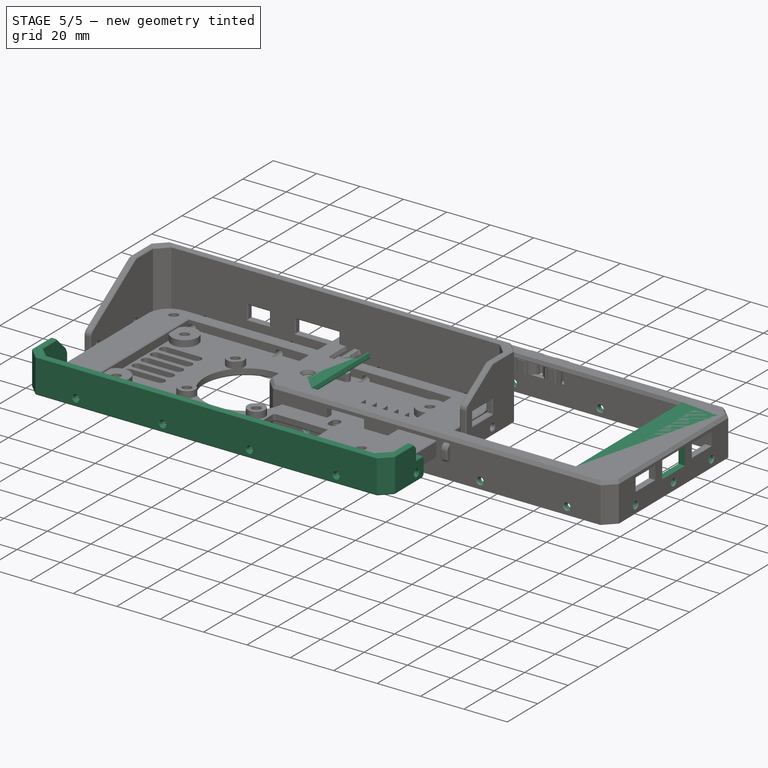
[diagram: stage 5 of 5 — iso view after this stage's code; geometry added in this stage tinted green]
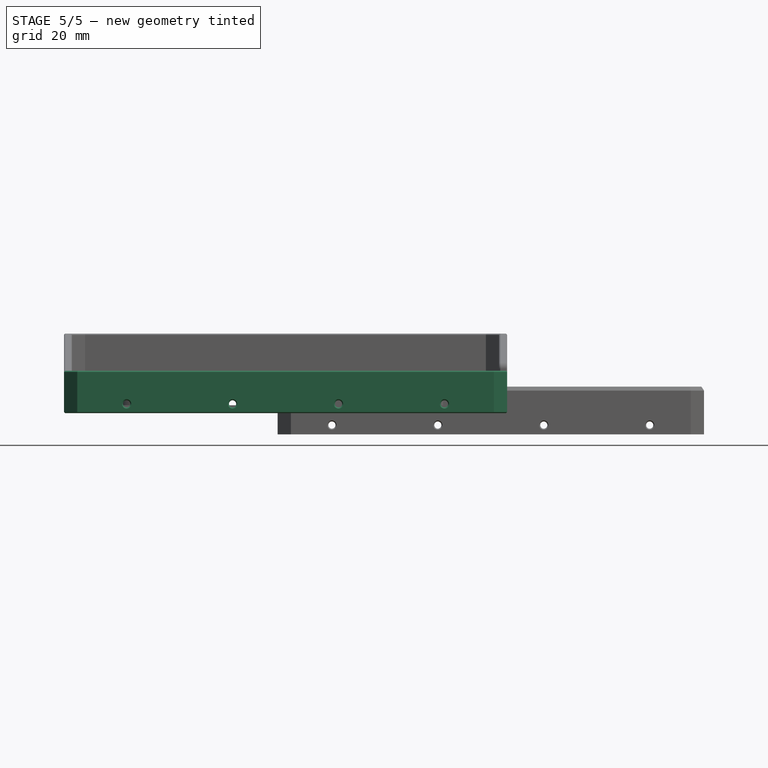
[diagram: stage 5 of 5 — front view after this stage's code; geometry added in this stage tinted green]
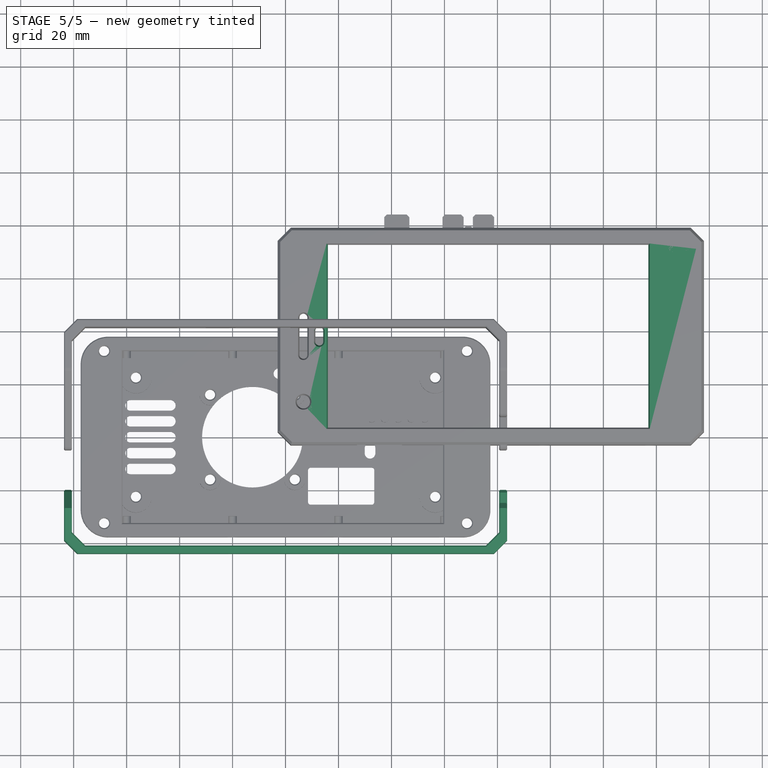
[diagram: stage 5 of 5 — top view after this stage's code; geometry added in this stage tinted green]
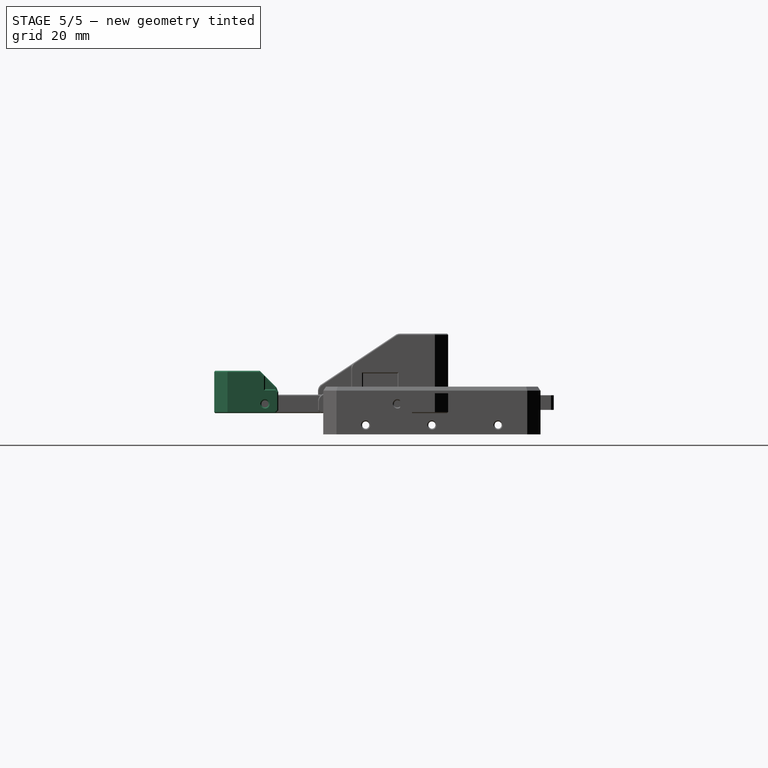
[diagram: stage 5 of 5 — right view after this stage's code; geometry added in this stage tinted green]
FEATURE [Sketcher::SketchObject] Sketch026
  FullyConstrained = true
  MapMode = 5
  Support = -> [XY_Plane003]
  sketch-geometry (8):
    g0: LineSegment StartX=-80.65 StartY=-20 StartZ=0 EndX=-80.65 EndY=-41.15 EndZ=0
    g1: LineSegment StartX=-80.65 StartY=-41.15 StartZ=0 EndX=80.65 EndY=-41.15 EndZ=0
    g2: LineSegment StartX=80.65 StartY=-41.15 StartZ=0 EndX=80.65 EndY=-20 EndZ=0
    g3: LineSegment StartX=80.65 StartY=-20 StartZ=0 EndX=83.65 EndY=-20 EndZ=0
    g4: LineSegment StartX=83.65 StartY=-20 StartZ=0 EndX=83.65 EndY=-44.15 EndZ=0
    g5: LineSegment StartX=83.65 StartY=-44.15 StartZ=0 EndX=-83.65 EndY=-44.15 EndZ=0
    g6: LineSegment StartX=-83.65 StartY=-44.15 StartZ=0 EndX=-83.65 EndY=-20 EndZ=0
    g7: LineSegment StartX=-83.65 StartY=-20 StartZ=0 EndX=-80.65 EndY=-20 EndZ=0
  constraints (24):
    c: Vertical(g0)
    c: Coincident(g0,g1)
    c: Horizontal(g1)
    c: Coincident(g1,g2)
    c: Vertical(g2)
    c: Coincident(g2,g3)
    c: Coincident(g3,g4)
    c: Vertical(g4)
    c: Coincident(g4,g5)
    c: Horizontal(g5)
    c: Coincident(g5,g6)
    c: Vertical(g6)
    c: Coincident(g6,g7)
    c: Coincident(g7,g0)
    c: Horizontal(g7)
    c: Horizontal(g3)
    c: Horizontal(g2,g0)
    c: DistanceX(g0,g-1) = 80.65
    c: DistanceX(g-1,g2) = 80.65
    c: DistanceY(g0,g-1) = 41.15
    c: DistanceX(g7,g7) = 3
    c: DistanceX(g3,g3) = 3
    c: DistanceY(g4,g1) = 3
    c: DistanceY(g2,g-1) = 20
FEATURE [PartDesign::Pad] Pad011
  Direction = (1,1,1)
  Length = 16
  Length2 = 100
  Profile = -> Sketch026
  Type = 0
FEATURE [PartDesign::Chamfer] Chamfer036003006
  Angle = 45
  Base = -> Pad011 [Edge17,Edge14,Edge2,Edge5]
  BaseFeature = -> Pad011
  ChamferType = 0
  FlipDirection = false
  Size = 5
  Size2 = 1
  SupportTransform = false
FEATURE [Sketcher::SketchObject] Sketch027
  ExternalGeometry = -> [Chamfer036003006]
  FullyConstrained = true
  MapMode = 5
  Placement = pos=(83.65,0,0) rot=(0.57735,0.57735,0.57735;2.0944rad)
  Support = -> [Chamfer036003006]
  sketch-geometry (4):
    g0: LineSegment StartX=-20 StartY=16 StartZ=0 EndX=-25 EndY=16 EndZ=0
    g1: LineSegment StartX=-25 StartY=16 StartZ=0 EndX=-25 EndY=9 EndZ=0
    g2: LineSegment StartX=-25 StartY=9 StartZ=0 EndX=-20 EndY=9 EndZ=0
    g3: LineSegment StartX=-20 StartY=9 StartZ=0 EndX=-20 EndY=16 EndZ=0
  constraints (11):
    c: Coincident(g0,g1)
    c: Coincident(g1,g2)
    c: Coincident(g2,g3)
    c: Coincident(g3,g0)
    c: Horizontal(g0)
    c: Horizontal(g2)
    c: Vertical(g1)
    c: Vertical(g3)
    c: Coincident(g0,g-4)
    c: DistanceX(g2,g2) = 5
    c: DistanceY(g1,g1) = 7
FEATURE [PartDesign::Pocket] Pocket008018
  BaseFeature = -> Chamfer036003006
  Length = 5
  Length2 = 100
  Profile = -> Sketch027
  Type = 0
FEATURE [Sketcher::SketchObject] Sketch028
  ExternalGeometry = -> [Pocket008018]
  FullyConstrained = true
  MapMode = 5
  Placement = pos=(83.65,0,0) rot=(0.57735,0.57735,0.57735;2.0944rad)
  Support = -> [Pocket008018]
  sketch-geometry (4):
    g0: LineSegment StartX=-27 StartY=16 StartZ=0 EndX=-20 EndY=9 EndZ=0
    g1: LineSegment StartX=-20 StartY=9 StartZ=0 EndX=-20 EndY=16 EndZ=0
    g2: LineSegment StartX=-20 StartY=16 StartZ=0 EndX=-27 EndY=16 EndZ=0
    g3: Circle CenterX=-25 CenterY=3.5 CenterZ=0 NormalX=0 NormalY=0 NormalZ=1 AngleXU=0 Radius=1.35
  constraints (12):
    c: PointOnObject(g0,g-4)
    c: PointOnObject(g0,g-3)
    c: Coincident(g0,g1)
    c: Vertical(g1)
    c: Coincident(g1,g2)
    c: Coincident(g2,g0)
    c: Horizontal(g2)
    c: DistanceY(g1,g1) = 7
    c: DistanceX(g2,g2) = 7
    c: DistanceY(g-1,g3) = 3.5
    c: DistanceX(g3,g-1) = 25
    c: Radius(g3) = 1.35
FEATURE [PartDesign::Pocket] Pocket008019
  BaseFeature = -> Pocket008018
  Length = 5
  Length2 = 100
  Profile = -> Sketch028
  Type = 1
FEATURE [PartDesign::Pocket] Pocket008020
  BaseFeature = -> Pocket008019
  Length = 5
  Length2 = 100
  Profile = -> Sketch028
  Type = 1
FEATURE [PartDesign::Chamfer] Chamfer036003007
  Angle = 45
  Base = -> Pocket008020 [Edge52,Edge30,Edge20,Edge22]
  BaseFeature = -> Pocket008020
  ChamferType = 0
  FlipDirection = false
  Size = 1
  Size2 = 1
  SupportTransform = false
FEATURE [Sketcher::SketchObject] Sketch029
  FullyConstrained = true
  MapMode = 5
  Placement = pos=(0,-44.15,0) rot=(1,0,0;1.5708rad)
  Support = -> [Chamfer036003007]
  sketch-geometry (4):
    g0: Circle CenterX=-60 CenterY=3.5 CenterZ=0 NormalX=0 NormalY=0 NormalZ=1 AngleXU=0 Radius=1.35
    g1: Circle CenterX=-20 CenterY=3.5 CenterZ=0 NormalX=0 NormalY=0 NormalZ=1 AngleXU=0 Radius=1.35
    g2: Circle CenterX=20 CenterY=3.5 CenterZ=0 NormalX=0 NormalY=0 NormalZ=1 AngleXU=0 Radius=1.35
    g3: Circle CenterX=60 CenterY=3.5 CenterZ=0 NormalX=0 NormalY=0 NormalZ=1 AngleXU=0 Radius=1.35
  constraints (12):
    c: Horizontal(g3,g2)
    c: Horizontal(g2,g1)
    c: Horizontal(g1,g0)
    c: Equal(g0,g1)
    c: Equal(g1,g2)
    c: Equal(g2,g3)
    c: Radius(g0) = 1.35
    c: DistanceY(g-1,g1) = 3.5
    c: DistanceX(g1,g-1) = 20
    c: DistanceX(g-1,g2) = 20
    c: DistanceX(g0,g1) = 40
    c: DistanceX(g2,g3) = 40
FEATURE [PartDesign::Pocket] Pocket008021
  BaseFeature = -> Chamfer036003007
  Length = 5
  Length2 = 100
  Profile = -> Sketch029
  Type = 1
FEATURE [PartDesign::Chamfer] Chamfer036003008
  Angle = 45
  Base = -> Pocket008021 [Edge51,Edge49,Edge50,Edge52,Edge54,Edge38,Edge53,Edge18,Edge17,Edge36,Edge16,Edge34,Edge15,Edge32,Face9,Face23,Face22,Face21,Face20,Edge14,Edge11,Edge13,Edge25,Edge28,Edge30,Face28,Edge58,Edge35,Edge60,Edge61,Edge62,Edge63,Edge57,Edge20,Edge33,Edge21,Edge22,Edge31,Edge26,Edge23,+6 more]
  BaseFeature = -> Pocket008021
  ChamferType = 0
  FlipDirection = false
  Size = 0.4
  Size2 = 1
  SupportTransform = false
FEATURE [PartDesign::Fillet] Fillet003
  Base = -> Pocket008023 [Edge19,Edge12,Edge10,Edge47]
  BaseFeature = -> Pocket008023
  Radius = 5
  SupportTransform = false
FEATURE [PartDesign::Chamfer] Chamfer027002
  Angle = 45
  Base = -> Pad005 [Edge57,Edge59,Edge54,Edge55]
  BaseFeature = -> Pad005
  ChamferType = 0
  FlipDirection = false
  Refine = true
  Size = 3
  Size2 = 1
  SupportTransform = false
FEATURE [Sketcher::SketchObject] Sketch006
  ExternalGeometry = -> [Chamfer027002]
  FullyConstrained = true
  MapMode = 5
  Placement = pos=(0,-3,0) rot=(1,0,0;1.5708rad)
  Support = -> [Chamfer027002]
  sketch-geometry (5):
    g0: GeomPoint X=77.5 Y=-8 Z=0
    g1: Circle CenterX=17.5 CenterY=-4.5 CenterZ=0 NormalX=0 NormalY=0 NormalZ=1 AngleXU=0 Radius=1.35
    g2: Circle CenterX=57.5 CenterY=-4.5 CenterZ=0 NormalX=0 NormalY=0 NormalZ=1 AngleXU=0 Radius=1.35
    g3: Circle CenterX=97.5 CenterY=-4.5 CenterZ=0 NormalX=0 NormalY=0 NormalZ=1 AngleXU=0 Radius=1.35
    g4: Circle CenterX=137.5 CenterY=-4.5 CenterZ=0 NormalX=0 NormalY=0 NormalZ=1 AngleXU=0 Radius=1.35
  constraints (14):
    c: PointOnObject(g0,g-3)
    c: DistanceX(g-3,g0) = 75.5
    c: Horizontal(g4,g3)
    c: Horizontal(g3,g2)
    c: Horizontal(g2,g1)
    c: DistanceY(g-3,g1) = 3.5
    c: DistanceX(g2,g0) = 20
    c: DistanceX(g0,g3) = 20
    c: DistanceX(g3,g4) = 40
    c: DistanceX(g1,g2) = 40
    c: Equal(g1,g2)
    c: Equal(g2,g3)
    c: Equal(g3,g4)
    c: Radius(g4) = 1.35
FEATURE [PartDesign::Pocket] Pocket008003
  BaseFeature = -> Chamfer027002
  Length = 5
  Length2 = 100
  Profile = -> Sketch006
  Type = 1
FEATURE [Sketcher::SketchObject] Sketch007
  ExternalGeometry = -> [Pocket008003]
  FullyConstrained = true
  MapMode = 5
  Placement = pos=(158,0,0) rot=(0.57735,0.57735,0.57735;2.0944rad)
  Support = -> [Pocket008003]
  sketch-geometry (4):
    g0: GeomPoint X=38 Y=-8 Z=0
    g1: Circle CenterX=13 CenterY=-4.5 CenterZ=0 NormalX=0 NormalY=0 NormalZ=1 AngleXU=0 Radius=1.35
    g2: Circle CenterX=38 CenterY=-4.5 CenterZ=0 NormalX=0 NormalY=0 NormalZ=1 AngleXU=0 Radius=1.35
    g3: Circle CenterX=63 CenterY=-4.5 CenterZ=0 NormalX=0 NormalY=0 NormalZ=1 AngleXU=0 Radius=1.35
  constraints (11):
    c: PointOnObject(g0,g-3)
    c: DistanceX(g-3,g0) = 36
    c: Vertical(g0,g2)
    c: Horizontal(g3,g2)
    c: Horizontal(g2,g1)
    c: DistanceY(g0,g2) = 3.5
    c: DistanceX(g1,g2) = 25
    c: DistanceX(g2,g3) = 25
    c: Equal(g1,g2)
    c: Equal(g2,g3)
    c: Radius(g3) = 1.35
FEATURE [PartDesign::Pocket] Pocket008004
  BaseFeature = -> Pocket008003
  Length = 5
  Length2 = 100
  Profile = -> Sketch007
  Type = 1
FEATURE [PartDesign::Chamfer] Chamfer027003
  Angle = 45
  Base = -> Pocket008004 [Edge15,Edge13,Edge16,Edge14,Edge12,Edge11,Edge9,Edge10]
  BaseFeature = -> Pocket008004
  ChamferType = 1
  FlipDirection = false
  Size = 1
  Size2 = 1.5
  SupportTransform = false
FEATURE [PartDesign::Chamfer] Chamfer027004
  Angle = 45
  Base = -> Chamfer027003 [Edge11,Edge9,Edge10,Edge12,Edge13,Edge14,Edge16,Edge15]
  BaseFeature = -> Chamfer027003
  ChamferType = 1
  FlipDirection = false
  Size = 1
  Size2 = 1.5
  SupportTransform = false
FEATURE [PartDesign::Chamfer] Chamfer027005
  Angle = 45
  Base = -> Chamfer027004 [Face47,Face46,Face37,Face36,Edge101,Face63,Face64,Face69,Face70,Face71,Face72,Face48,Face49,Face54]
  BaseFeature = -> Chamfer027004
  ChamferType = 0
  FlipDirection = false
  Size = 0.4
  Size2 = 1
  SupportTransform = false
FEATURE [Sketcher::SketchObject] Sketch032
  ExternalGeometry = -> [Chamfer027005]
  FullyConstrained = true
  MapMode = 5
  Placement = pos=(158,0,0) rot=(0.57735,0.57735,0.57735;2.0944rad)
  Support = -> [Chamfer027005]
  sketch-geometry (6):
    g0: LineSegment StartX=30.5 StartY=7.5 StartZ=0 EndX=45.5 EndY=7.5 EndZ=0
    g1: LineSegment StartX=45.5 StartY=7.5 StartZ=0 EndX=45.5 EndY=-0.5 EndZ=0
    g2: LineSegment StartX=45.5 StartY=-0.5 StartZ=0 EndX=30.5 EndY=-0.5 EndZ=0
    g3: LineSegment StartX=30.5 StartY=-0.5 StartZ=0 EndX=30.5 EndY=7.5 EndZ=0
    g4: GeomPoint X=38 Y=7.5 Z=0
    g5: GeomPoint X=38 Y=8.5 Z=0
  constraints (17):
    c: Coincident(g0,g1)
    c: Coincident(g1,g2)
    c: Coincident(g2,g3)
    c: Coincident(g3,g0)
    c: Horizontal(g0)
    c: Horizontal(g2)
    c: Vertical(g1)
    c: Vertical(g3)
    c: DistanceX(g-3,g-3) = 72
    c: PointOnObject(g4,g0)
    c: PointOnObject(g5,g-3)
    c: DistanceX(g-3,g5) = 36
    c: DistanceY(g3,g3) = 8
    c: DistanceY(g0,g-4) = 2.5
    c: DistanceX(g0,g0) = 15
    c: DistanceX(g0,g4) = 7.5
    c: Vertical(g4,g5)
FEATURE [PartDesign::Pocket] Pocket008024
  BaseFeature = -> Chamfer027005
  Length = 5
  Length2 = 100
  Profile = -> Sketch032
  Type = 0
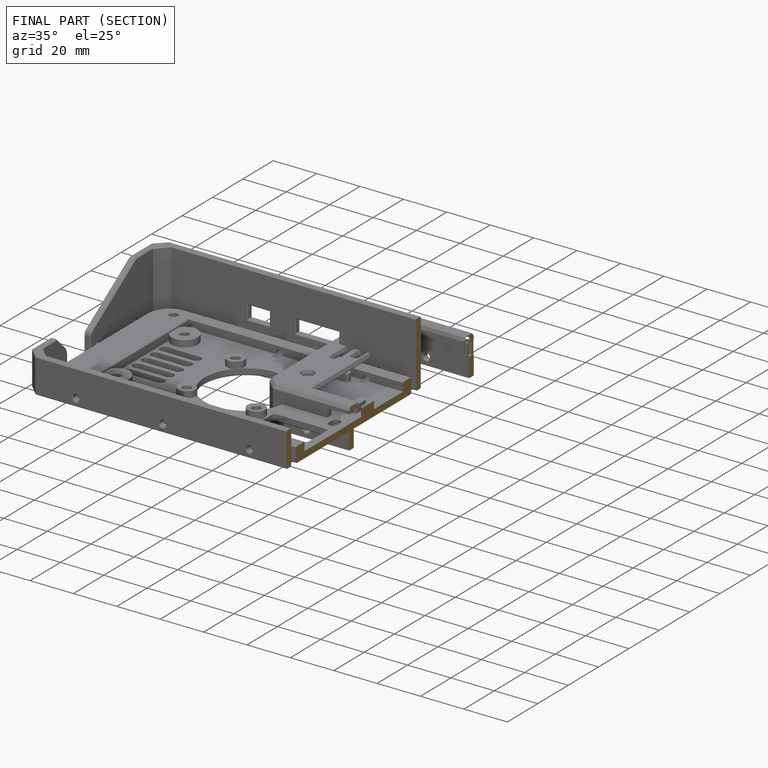
[diagram: finished part — half-section view (interior)]
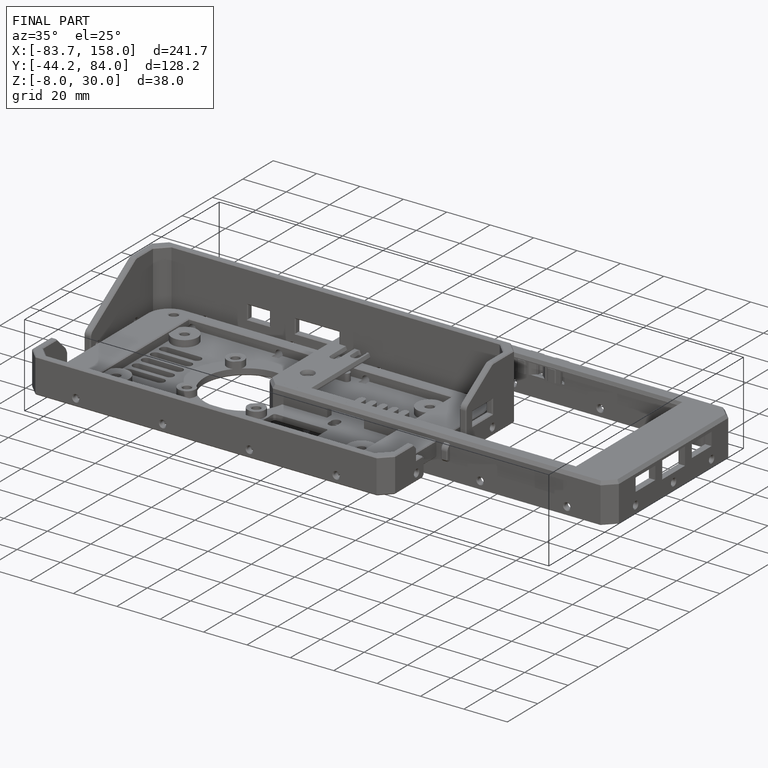
[diagram: finished part — iso view with bounding-box wireframe]
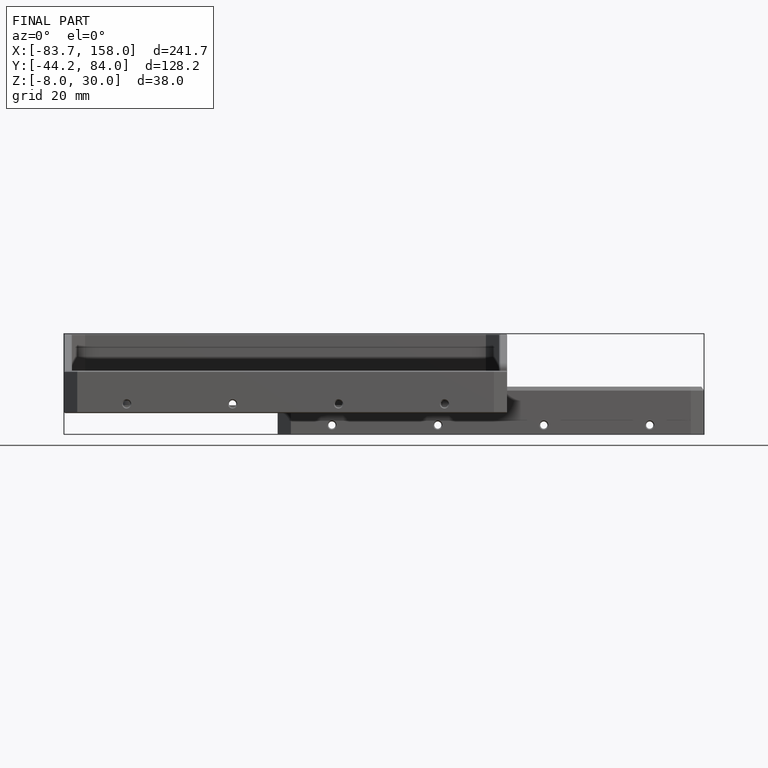
[diagram: finished part — front view with bounding-box wireframe]
